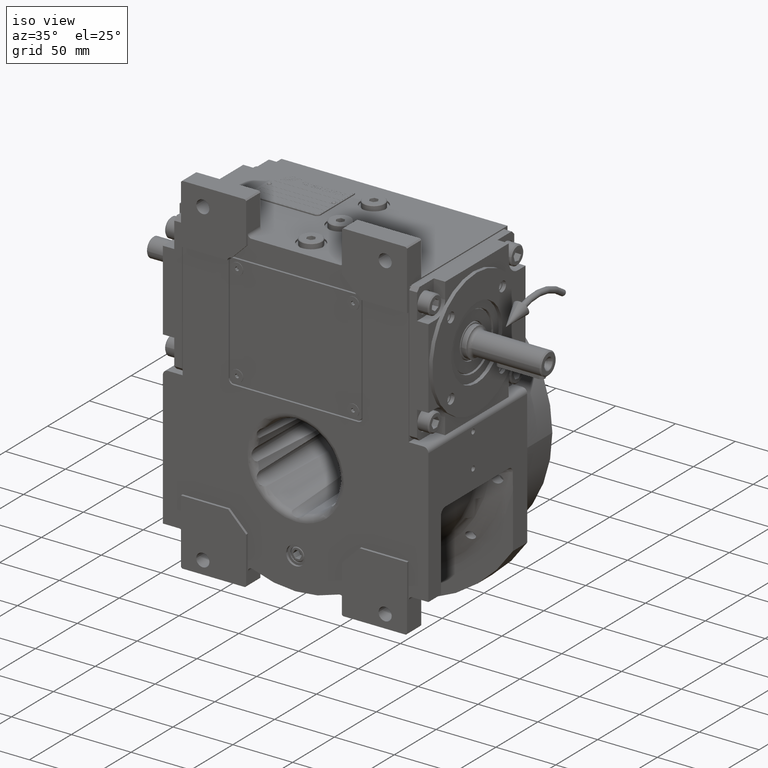
[diagram: clean part render]
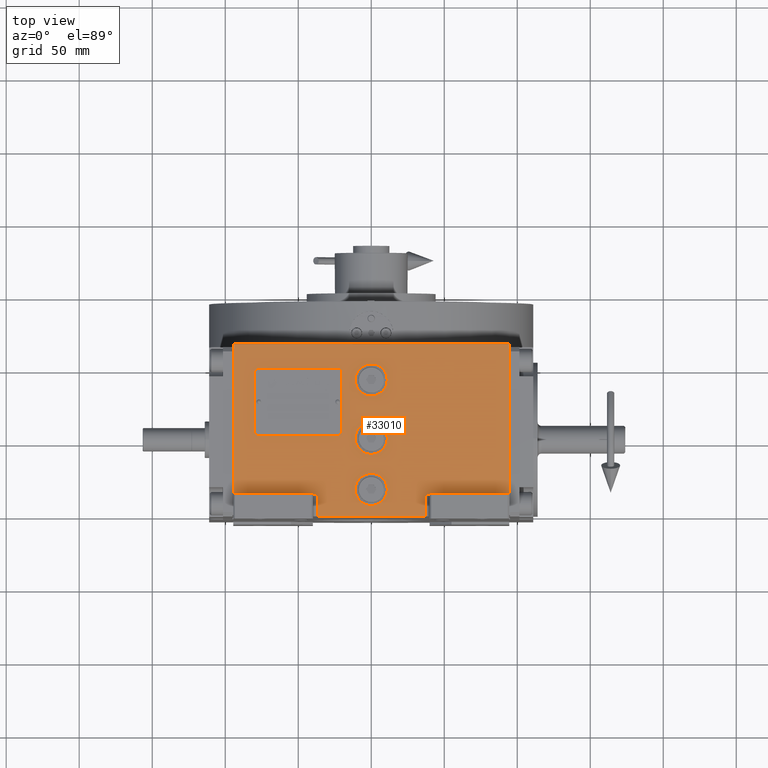
[diagram: tour spotlight — one face highlighted and labeled with its STEP entity id]
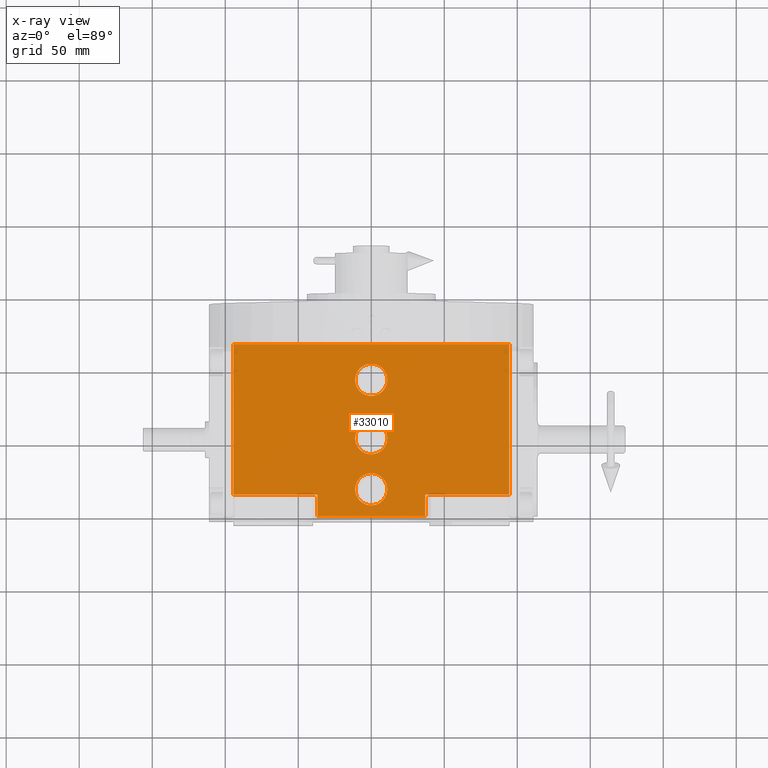
[diagram: x-ray of the same camera — body ghosted, this tour face saturated]
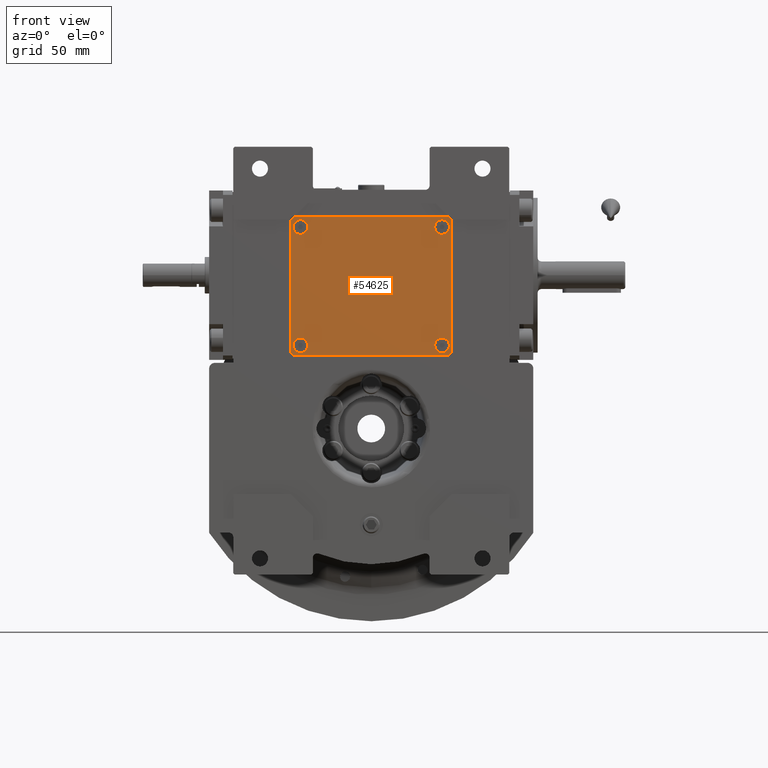
[diagram: tour spotlight — one face highlighted and labeled with its STEP entity id]
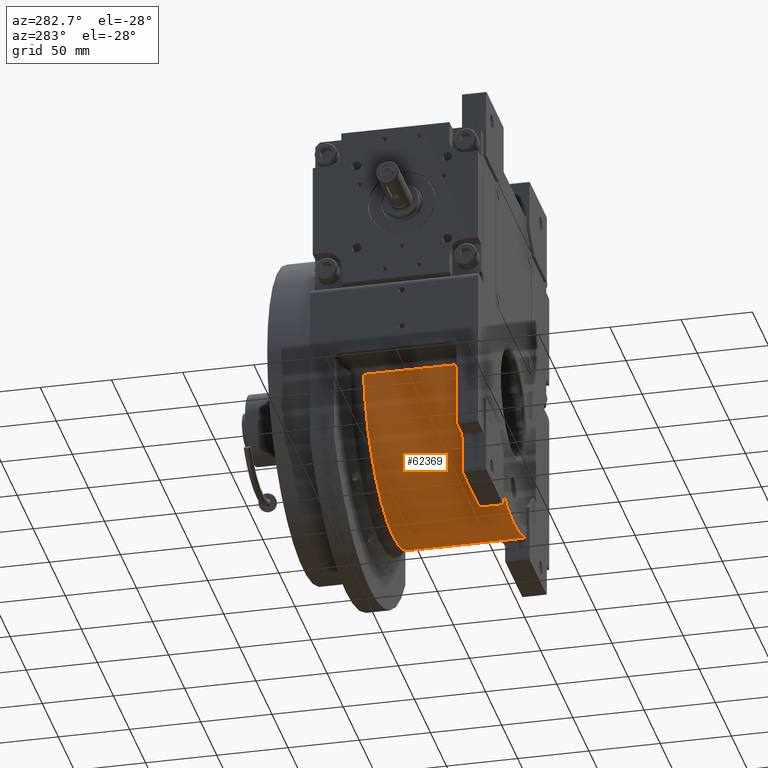
[diagram: tour spotlight — one face highlighted and labeled with its STEP entity id]
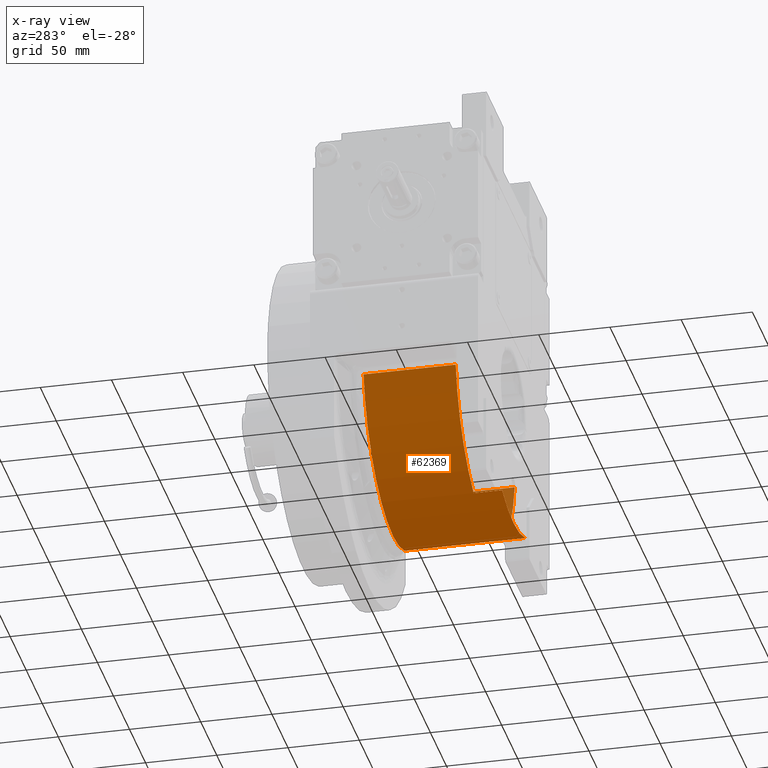
[diagram: x-ray of the same camera — body ghosted, this tour face saturated]
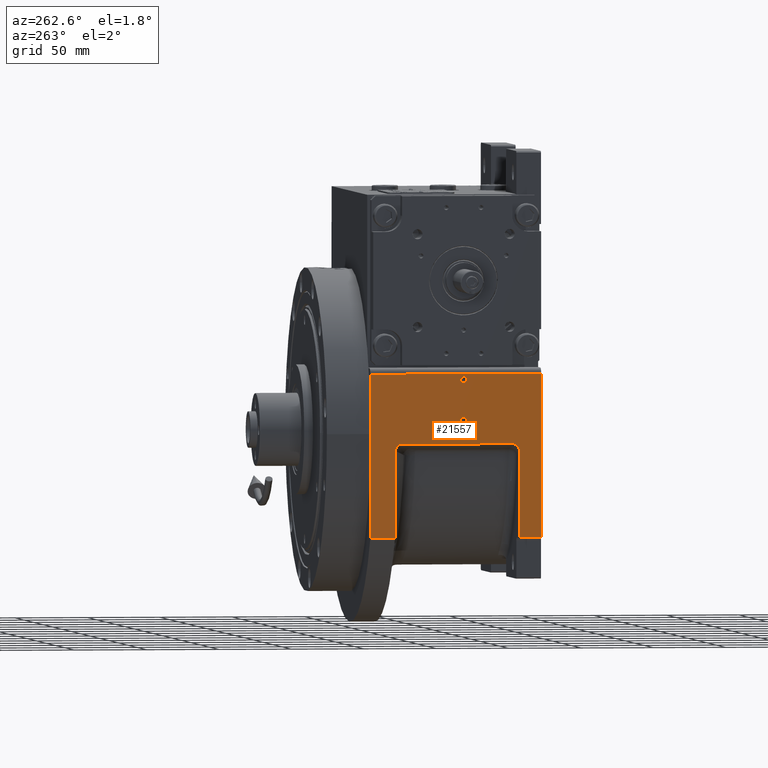
[diagram: tour spotlight — one face highlighted and labeled with its STEP entity id]
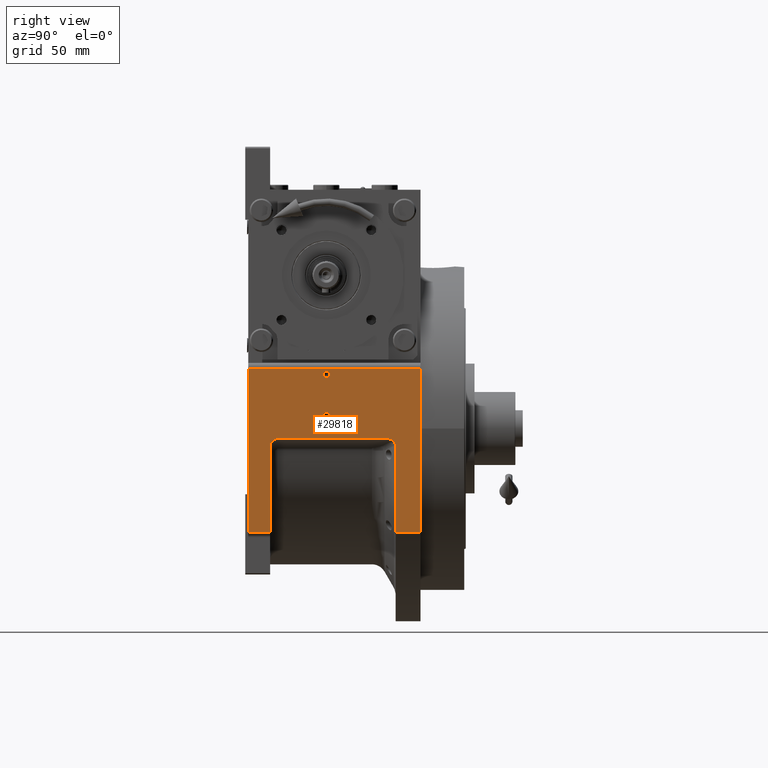
[diagram: tour spotlight — one face highlighted and labeled with its STEP entity id]
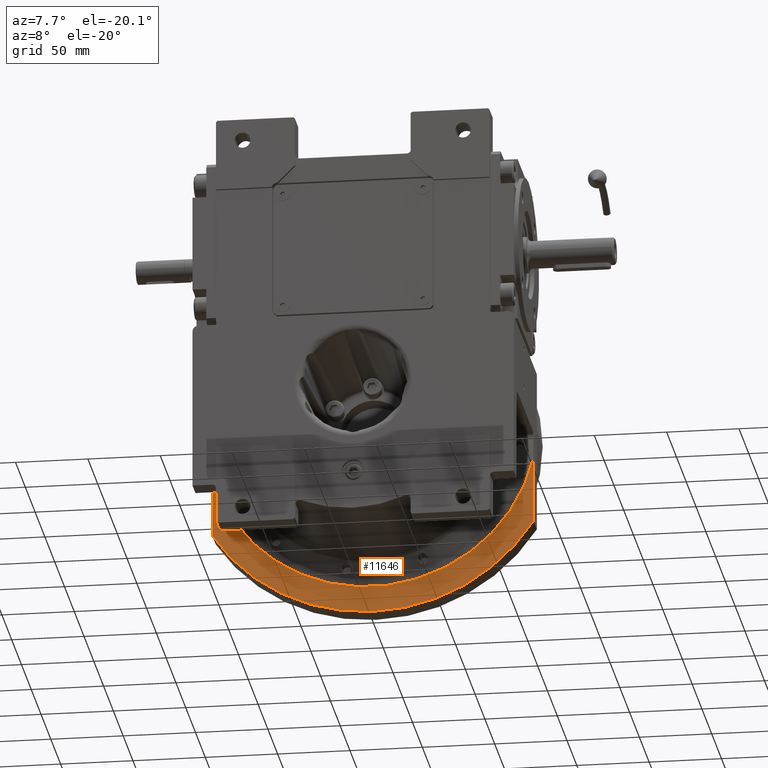
[diagram: tour spotlight — one face highlighted and labeled with its STEP entity id]
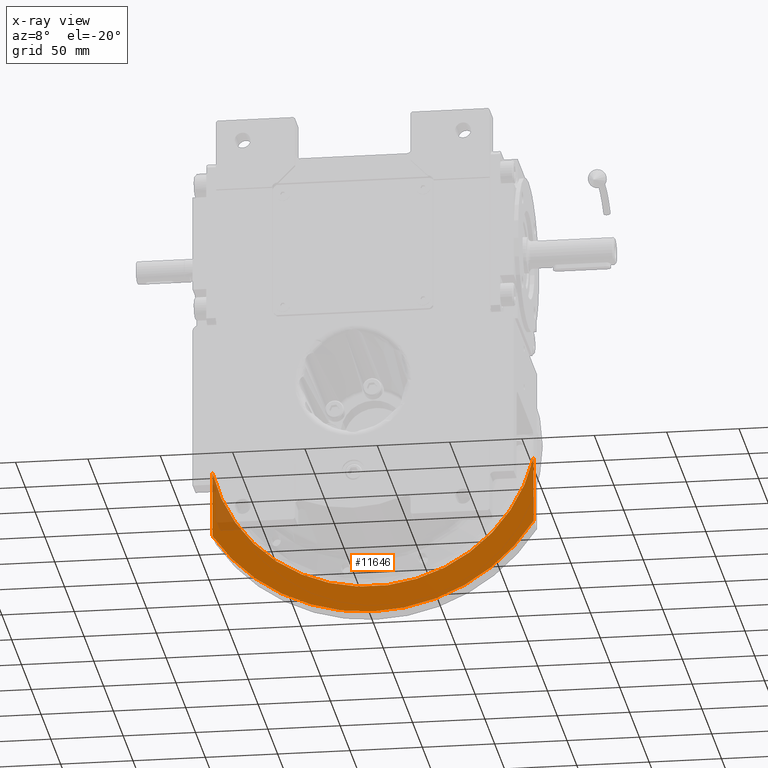
[diagram: x-ray of the same camera — body ghosted, this tour face saturated]
A machine part: a face-by-face anatomy tour. The part has 2052 B-rep faces; the first image is the clean iso view, then the 6 largest visible faces are spotlighted one at a time (largest first), each with its STEP entity span.

Face 1 — top view, entity #33010. An x-ray twin of the same camera follows (body ghosted, this face saturated) — the face is partly hidden behind the body. In plain terms, the highlighted planar face has unit normal (0, 0, 1).
Definition (entity closure, byte-faithful):
#687 = CARTESIAN_POINT ( 'NONE',  ( -11.00000000000000000, -35.00000000000000000, 163.5000000000000000 ) ) ;
#924 = DIRECTION ( 'NONE',  ( 1.000000000000000000, 0.000000000000000000, 0.000000000000000000 ) ) ;
#1332 = CARTESIAN_POINT ( 'NONE',  ( -94.50000000000000000, -53.50000000000000000, 163.5000000000000000 ) ) ;
#1872 = ORIENTED_EDGE ( 'NONE', *, *, #7140, .T. ) ;
#2413 = EDGE_CURVE ( 'NONE', #27797, #52771, #24660, .T. ) ;
#4304 = EDGE_CURVE ( 'NONE', #52771, #27797, #43318, .T. ) ;
#5310 = FACE_BOUND ( 'NONE', #24180, .T. ) ;
#6108 = CARTESIAN_POINT ( 'NONE',  ( -11.00000000000000000, 40.00000000000000000, 163.5000000000000000 ) ) ;
#7140 = EDGE_CURVE ( 'NONE', #29210, #25025, #50013, .T. ) ;
#9000 = CARTESIAN_POINT ( 'NONE',  ( 94.50000000000000000, -38.50000000000000000, 163.5000000000000000 ) ) ;
#9218 = DIRECTION ( 'NONE',  ( 0.000000000000000000, 0.000000000000000000, 1.000000000000000000 ) ) ;
#10930 = CARTESIAN_POINT ( 'NONE',  ( -94.50000000000000000, 64.50000000000000000, 163.5000000000000000 ) ) ;
#11757 = DIRECTION ( 'NONE',  ( 1.000000000000000000, 0.000000000000000000, 0.000000000000000000 ) ) ;
#11782 = CARTESIAN_POINT ( 'NONE',  ( 0.000000000000000000, -35.00000000000000000, 163.5000000000000000 ) ) ;
#12424 = DIRECTION ( 'NONE',  ( 1.000000000000000000, 0.000000000000000000, 0.000000000000000000 ) ) ;
#12435 = AXIS2_PLACEMENT_3D ( 'NONE', #31061, #9218, #48222 ) ;
#12671 = DIRECTION ( 'NONE',  ( 0.000000000000000000, 1.000000000000000000, 0.000000000000000000 ) ) ;
#14507 = CIRCLE ( 'NONE', #64778, 11.00000000000000000 ) ;
#14897 = AXIS2_PLACEMENT_3D ( 'NONE', #50073, #45419, #11757 ) ;
#15785 = LINE ( 'NONE', #16478, #58253 ) ;
#15797 = VERTEX_POINT ( 'NONE', #70638 ) ;
#16009 = FACE_BOUND ( 'NONE', #52392, .T. ) ;
#16082 = ORIENTED_EDGE ( 'NONE', *, *, #66357, .T. ) ;
#16478 = CARTESIAN_POINT ( 'NONE',  ( -94.50000000000000000, -38.50000000000000000, 163.5000000000000000 ) ) ;
#16725 = FACE_BOUND ( 'NONE', #32949, .T. ) ;
#17936 = ORIENTED_EDGE ( 'NONE', *, *, #33979, .F. ) ;
#19115 = LINE ( 'NONE', #46314, #46481 ) ;
#19330 = VECTOR ( 'NONE', #51338, 1000.000000000000000 ) ;
#19763 = CARTESIAN_POINT ( 'NONE',  ( 36.99999999999934630, -38.50000000000000000, 163.5000000000000000 ) ) ;
#19879 = CARTESIAN_POINT ( 'NONE',  ( 94.50000000000000000, 64.50000000000000000, 163.5000000000000000 ) ) ;
#20004 = DIRECTION ( 'NONE',  ( 0.000000000000000000, 0.000000000000000000, 1.000000000000000000 ) ) ;
#20233 = ORIENTED_EDGE ( 'NONE', *, *, #2413, .F. ) ;
#23552 = VERTEX_POINT ( 'NONE', #19879 ) ;
#23648 = DIRECTION ( 'NONE',  ( 1.000000000000000000, 0.000000000000000000, 0.000000000000000000 ) ) ;
#24180 = EDGE_LOOP ( 'NONE', ( #26785, #24792 ) ) ;
#24548 = EDGE_CURVE ( 'NONE', #36415, #63006, #24704, .T. ) ;
#24660 = CIRCLE ( 'NONE', #69209, 11.00000000000000000 ) ;
#24704 = LINE ( 'NONE', #40446, #45188 ) ;
#24792 = ORIENTED_EDGE ( 'NONE', *, *, #57910, .F. ) ;
#25025 = VERTEX_POINT ( 'NONE', #45996 ) ;
#25040 = CIRCLE ( 'NONE', #50166, 11.00000000000000000 ) ;
#25868 = AXIS2_PLACEMENT_3D ( 'NONE', #52933, #20004, #36818 ) ;
#26437 = ORIENTED_EDGE ( 'NONE', *, *, #70573, .F. ) ;
#26785 = ORIENTED_EDGE ( 'NONE', *, *, #39756, .F. ) ;
#26803 = VECTOR ( 'NONE', #36786, 1000.000000000000000 ) ;
#27225 = DIRECTION ( 'NONE',  ( 0.000000000000000000, 0.000000000000000000, 1.000000000000000000 ) ) ;
#27797 = VERTEX_POINT ( 'NONE', #51840 ) ;
#29210 = VERTEX_POINT ( 'NONE', #36371 ) ;
#30406 = DIRECTION ( 'NONE',  ( 1.000000000000000000, 0.000000000000000000, 0.000000000000000000 ) ) ;
#30716 = EDGE_CURVE ( 'NONE', #36415, #25025, #42894, .T. ) ;
#30799 = ORIENTED_EDGE ( 'NONE', *, *, #70270, .F. ) ;
#30969 = EDGE_CURVE ( 'NONE', #70138, #34708, #47737, .T. ) ;
#31061 = CARTESIAN_POINT ( 'NONE',  ( 0.000000000000000000, 0.000000000000000000, 163.5000000000000000 ) ) ;
#31272 = CARTESIAN_POINT ( 'NONE',  ( -94.50000000000000000, -38.50000000000000000, 163.5000000000000000 ) ) ;
#32949 = EDGE_LOOP ( 'NONE', ( #17936, #26437 ) ) ;
#32950 = DIRECTION ( 'NONE',  ( 0.000000000000000000, 1.000000000000000000, 0.000000000000000000 ) ) ;
#33010 = ADVANCED_FACE ( 'NONE', ( #16009, #16725, #5310, #38556 ), #60038, .T. ) ;
#33566 = DIRECTION ( 'NONE',  ( 0.000000000000000000, 0.000000000000000000, 1.000000000000000000 ) ) ;
#33838 = LINE ( 'NONE', #10930, #45962 ) ;
#33907 = DIRECTION ( 'NONE',  ( 1.000000000000000000, 0.000000000000000000, 0.000000000000000000 ) ) ;
#33979 = EDGE_CURVE ( 'NONE', #69504, #41541, #14507, .T. ) ;
#34708 = VERTEX_POINT ( 'NONE', #42451 ) ;
#36371 = CARTESIAN_POINT ( 'NONE',  ( -36.99999999999929656, -53.50000000000000000, 163.5000000000000000 ) ) ;
#36415 = VERTEX_POINT ( 'NONE', #19763 ) ;
#36651 = DIRECTION ( 'NONE',  ( 1.000000000000000000, 0.000000000000000000, 0.000000000000000000 ) ) ;
#36786 = DIRECTION ( 'NONE',  ( 0.000000000000000000, 1.000000000000000000, 0.000000000000000000 ) ) ;
#36818 = DIRECTION ( 'NONE',  ( -1.000000000000000000, 0.000000000000000000, 0.000000000000000000 ) ) ;
#37519 = CARTESIAN_POINT ( 'NONE',  ( 36.99999999999934630, -38.50000000000000000, 163.5000000000000000 ) ) ;
#37829 = CARTESIAN_POINT ( 'NONE',  ( 94.50000000000000000, -38.50000000000000000, 163.5000000000000000 ) ) ;
#37852 = DIRECTION ( 'NONE',  ( 1.000000000000000000, 0.000000000000000000, 0.000000000000000000 ) ) ;
#38556 = FACE_OUTER_BOUND ( 'NONE', #62480, .T. ) ;
#39472 = ORIENTED_EDGE ( 'NONE', *, *, #30969, .T. ) ;
#39625 = CARTESIAN_POINT ( 'NONE',  ( 11.00000000000000000, -35.00000000000000000, 163.5000000000000000 ) ) ;
#39756 = EDGE_CURVE ( 'NONE', #54690, #58106, #58345, .T. ) ;
#40446 = CARTESIAN_POINT ( 'NONE',  ( 36.99999999999934630, -38.50000000000000000, 163.5000000000000000 ) ) ;
#41541 = VERTEX_POINT ( 'NONE', #687 ) ;
#42451 = CARTESIAN_POINT ( 'NONE',  ( -36.99999999999929656, -38.50000000000000000, 163.5000000000000000 ) ) ;
#42894 = LINE ( 'NONE', #37519, #19330 ) ;
#43318 = CIRCLE ( 'NONE', #12435, 11.00000000000000000 ) ;
#43687 = DIRECTION ( 'NONE',  ( -1.000000000000000000, 0.000000000000000000, 0.000000000000000000 ) ) ;
#44645 = CARTESIAN_POINT ( 'NONE',  ( -36.99999999999929656, -53.50000000000000000, 163.5000000000000000 ) ) ;
#44922 = VECTOR ( 'NONE', #33907, 1000.000000000000000 ) ;
#45188 = VECTOR ( 'NONE', #23648, 1000.000000000000000 ) ;
#45402 = ORIENTED_EDGE ( 'NONE', *, *, #63652, .F. ) ;
#45419 = DIRECTION ( 'NONE',  ( 0.000000000000000000, 0.000000000000000000, 1.000000000000000000 ) ) ;
#45962 = VECTOR ( 'NONE', #924, 1000.000000000000000 ) ;
#45996 = CARTESIAN_POINT ( 'NONE',  ( 36.99999999999934630, -53.50000000000000000, 163.5000000000000000 ) ) ;
#46314 = CARTESIAN_POINT ( 'NONE',  ( -36.99999999999929656, -53.50000000000000000, 163.5000000000000000 ) ) ;
#46481 = VECTOR ( 'NONE', #12671, 1000.000000000000000 ) ;
#47737 = LINE ( 'NONE', #31272, #66219 ) ;
#48222 = DIRECTION ( 'NONE',  ( -1.000000000000000000, 0.000000000000000000, 0.000000000000000000 ) ) ;
#48349 = CARTESIAN_POINT ( 'NONE',  ( 0.000000000000000000, 40.00000000000000000, 163.5000000000000000 ) ) ;
#49876 = CIRCLE ( 'NONE', #25868, 11.00000000000000000 ) ;
#50013 = LINE ( 'NONE', #44645, #44922 ) ;
#50038 = CARTESIAN_POINT ( 'NONE',  ( 0.000000000000000000, 0.000000000000000000, 163.5000000000000000 ) ) ;
#50073 = CARTESIAN_POINT ( 'NONE',  ( 0.000000000000000000, 40.00000000000000000, 163.5000000000000000 ) ) ;
#50166 = AXIS2_PLACEMENT_3D ( 'NONE', #48349, #27225, #43687 ) ;
#51338 = DIRECTION ( 'NONE',  ( 0.000000000000000000, -1.000000000000000000, 0.000000000000000000 ) ) ;
#51840 = CARTESIAN_POINT ( 'NONE',  ( 11.00000000000000000, -1.179289943096200059E-15, 163.5000000000000000 ) ) ;
#52392 = EDGE_LOOP ( 'NONE', ( #20233, #61582 ) ) ;
#52771 = VERTEX_POINT ( 'NONE', #66201 ) ;
#52933 = CARTESIAN_POINT ( 'NONE',  ( 0.000000000000000000, -35.00000000000000000, 163.5000000000000000 ) ) ;
#54690 = VERTEX_POINT ( 'NONE', #65049 ) ;
#55455 = DIRECTION ( 'NONE',  ( 0.000000000000000000, 0.000000000000000000, 1.000000000000000000 ) ) ;
#57910 = EDGE_CURVE ( 'NONE', #58106, #54690, #25040, .T. ) ;
#58106 = VERTEX_POINT ( 'NONE', #6108 ) ;
#58253 = VECTOR ( 'NONE', #32950, 1000.000000000000000 ) ;
#58345 = CIRCLE ( 'NONE', #14897, 11.00000000000000000 ) ;
#59268 = EDGE_CURVE ( 'NONE', #70138, #15797, #15785, .T. ) ;
#60038 = PLANE ( 'NONE',  #69283 ) ;
#61582 = ORIENTED_EDGE ( 'NONE', *, *, #4304, .F. ) ;
#62480 = EDGE_LOOP ( 'NONE', ( #1872, #64838, #64118, #16082, #45402, #65022, #39472, #30799 ) ) ;
#63006 = VERTEX_POINT ( 'NONE', #9000 ) ;
#63652 = EDGE_CURVE ( 'NONE', #15797, #23552, #33838, .T. ) ;
#64118 = ORIENTED_EDGE ( 'NONE', *, *, #24548, .T. ) ;
#64678 = LINE ( 'NONE', #37829, #26803 ) ;
#64778 = AXIS2_PLACEMENT_3D ( 'NONE', #11782, #55455, #30406 ) ;
#64838 = ORIENTED_EDGE ( 'NONE', *, *, #30716, .F. ) ;
#65022 = ORIENTED_EDGE ( 'NONE', *, *, #59268, .F. ) ;
#65049 = CARTESIAN_POINT ( 'NONE',  ( 11.00000000000000000, 40.00000000000000000, 163.5000000000000000 ) ) ;
#66108 = DIRECTION ( 'NONE',  ( 0.000000000000000000, 0.000000000000000000, 1.000000000000000000 ) ) ;
#66201 = CARTESIAN_POINT ( 'NONE',  ( -11.00000000000000000, 0.000000000000000000, 163.5000000000000000 ) ) ;
#66219 = VECTOR ( 'NONE', #36651, 1000.000000000000000 ) ;
#66357 = EDGE_CURVE ( 'NONE', #63006, #23552, #64678, .T. ) ;
#66737 = CARTESIAN_POINT ( 'NONE',  ( -94.50000000000000000, -38.50000000000000000, 163.5000000000000000 ) ) ;
#69209 = AXIS2_PLACEMENT_3D ( 'NONE', #50038, #33566, #12424 ) ;
#69283 = AXIS2_PLACEMENT_3D ( 'NONE', #1332, #66108, #37852 ) ;
#69504 = VERTEX_POINT ( 'NONE', #39625 ) ;
#70138 = VERTEX_POINT ( 'NONE', #66737 ) ;
#70270 = EDGE_CURVE ( 'NONE', #29210, #34708, #19115, .T. ) ;
#70573 = EDGE_CURVE ( 'NONE', #41541, #69504, #49876, .T. ) ;
#70638 = CARTESIAN_POINT ( 'NONE',  ( -94.50000000000000000, 64.50000000000000000, 163.5000000000000000 ) ) ;

Face 2 — front view, entity #54625. In plain terms, the highlighted planar face has unit normal (0, -1, -0).
Definition (entity closure, byte-faithful):
#332 = LINE ( 'NONE', #54362, #15098 ) ;
#339 = VERTEX_POINT ( 'NONE', #49051 ) ;
#357 = DIRECTION ( 'NONE',  ( 1.000000000000000000, 1.541976423090496028E-15, 0.000000000000000000 ) ) ;
#917 = CARTESIAN_POINT ( 'NONE',  ( 48.50000000000026290, 40.49999999999999289, 3.000000000000002665 ) ) ;
#1556 = VECTOR ( 'NONE', #26039, 1000.000000000000000 ) ;
#2514 = CARTESIAN_POINT ( 'NONE',  ( -52.99999999999973710, 47.50000000000000000, 3.000000000000259348 ) ) ;
#3053 = CARTESIAN_POINT ( 'NONE',  ( -48.49999999999973710, -40.49999999999973710, 3.000000000000002665 ) ) ;
#3154 = EDGE_CURVE ( 'NONE', #61057, #15587, #47754, .T. ) ;
#3466 = LINE ( 'NONE', #18486, #56345 ) ;
#3610 = CARTESIAN_POINT ( 'NONE',  ( -48.49999999999973710, -40.49999999999973710, 3.000000000000002665 ) ) ;
#3996 = DIRECTION ( 'NONE',  ( -9.367723249499515189E-31, -1.000000000000000000, 0.000000000000000000 ) ) ;
#4229 = CARTESIAN_POINT ( 'NONE',  ( 53.00000000000026290, 47.50000000000000000, 3.000000000000002665 ) ) ;
#4377 = ORIENTED_EDGE ( 'NONE', *, *, #41504, .T. ) ;
#5380 = CARTESIAN_POINT ( 'NONE',  ( 48.50000000000026290, -40.50000000000000000, 2.999999999999738876 ) ) ;
#5513 = EDGE_CURVE ( 'NONE', #56527, #6885, #36806, .T. ) ;
#5523 = LINE ( 'NONE', #55234, #11041 ) ;
#5998 = FACE_BOUND ( 'NONE', #24787, .T. ) ;
#6053 = CIRCLE ( 'NONE', #64329, 4.499999999999997335 ) ;
#6637 = EDGE_CURVE ( 'NONE', #26184, #55669, #6053, .T. ) ;
#6885 = VERTEX_POINT ( 'NONE', #15314 ) ;
#7158 = EDGE_CURVE ( 'NONE', #13134, #61057, #3466, .T. ) ;
#7199 = VERTEX_POINT ( 'NONE', #52140 ) ;
#7700 = ORIENTED_EDGE ( 'NONE', *, *, #42360, .F. ) ;
#7751 = LINE ( 'NONE', #67168, #54263 ) ;
#8113 = DIRECTION ( 'NONE',  ( 0.7071067811865474617, -0.7071067811865474617, 3.697785493223490101E-32 ) ) ;
#8135 = ORIENTED_EDGE ( 'NONE', *, *, #63665, .F. ) ;
#8145 = EDGE_LOOP ( 'NONE', ( #27451, #26524 ) ) ;
#8662 = CIRCLE ( 'NONE', #64697, 4.499999999999997335 ) ;
#9547 = VERTEX_POINT ( 'NONE', #65103 ) ;
#10005 = DIRECTION ( 'NONE',  ( 9.255241265799875595E-31, 0.000000000000000000, 1.000000000000000000 ) ) ;
#10636 = PLANE ( 'NONE',  #61775 ) ;
#10772 = EDGE_CURVE ( 'NONE', #50002, #339, #50830, .T. ) ;
#10848 = ORIENTED_EDGE ( 'NONE', *, *, #63015, .T. ) ;
#11041 = VECTOR ( 'NONE', #16232, 1000.000000000000114 ) ;
#11346 = CARTESIAN_POINT ( 'NONE',  ( 0.000000000000000000, 0.000000000000000000, 3.000000000000002665 ) ) ;
#13134 = VERTEX_POINT ( 'NONE', #24044 ) ;
#13432 = ORIENTED_EDGE ( 'NONE', *, *, #43000, .T. ) ;
#15033 = AXIS2_PLACEMENT_3D ( 'NONE', #59673, #54293, #15660 ) ;
#15098 = VECTOR ( 'NONE', #43979, 1000.000000000000114 ) ;
#15139 = ORIENTED_EDGE ( 'NONE', *, *, #7158, .T. ) ;
#15314 = CARTESIAN_POINT ( 'NONE',  ( 44.00000000000026290, 40.49999999999999289, 3.000000000000002665 ) ) ;
#15587 = VERTEX_POINT ( 'NONE', #61049 ) ;
#15660 = DIRECTION ( 'NONE',  ( 1.000000000000000000, 1.541976423090496028E-15, 0.000000000000000000 ) ) ;
#15732 = DIRECTION ( 'NONE',  ( 1.000000000000000000, 1.541976423090496028E-15, 0.000000000000000000 ) ) ;
#16232 = DIRECTION ( 'NONE',  ( -0.7071067811865474617, -0.7071067811865474617, -9.367723249499506431E-31 ) ) ;
#16431 = DIRECTION ( 'NONE',  ( 9.255241265799875595E-31, 0.000000000000000000, 1.000000000000000000 ) ) ;
#16760 = CARTESIAN_POINT ( 'NONE',  ( -48.49999999999973710, 40.49999999999999289, 3.000000000000259348 ) ) ;
#17509 = DIRECTION ( 'NONE',  ( -1.000000000000000000, -1.541976423090496028E-15, 0.000000000000000000 ) ) ;
#17683 = CARTESIAN_POINT ( 'NONE',  ( -53.00000000000000000, -47.49999999999973710, 3.000000000000266454 ) ) ;
#17895 = ORIENTED_EDGE ( 'NONE', *, *, #3154, .T. ) ;
#18157 = ORIENTED_EDGE ( 'NONE', *, *, #20498, .F. ) ;
#18486 = CARTESIAN_POINT ( 'NONE',  ( -55.00000000000000000, -45.49999999999973710, 3.000000000000266454 ) ) ;
#19664 = VECTOR ( 'NONE', #3996, 1000.000000000000000 ) ;
#20199 = CARTESIAN_POINT ( 'NONE',  ( 53.00000000000026290, 47.50000000000000000, 3.000000000000002665 ) ) ;
#20498 = EDGE_CURVE ( 'NONE', #39591, #31264, #8662, .T. ) ;
#20872 = CARTESIAN_POINT ( 'NONE',  ( 53.00000000000026290, -40.50000000000000000, 2.999999999999738876 ) ) ;
#21300 = EDGE_CURVE ( 'NONE', #59710, #7199, #5523, .T. ) ;
#21677 = DIRECTION ( 'NONE',  ( 9.255241265799875595E-31, 0.000000000000000000, 1.000000000000000000 ) ) ;
#22386 = DIRECTION ( 'NONE',  ( -1.000000000000000000, -1.541976423090496028E-15, 0.000000000000000000 ) ) ;
#22804 = FACE_BOUND ( 'NONE', #8145, .T. ) ;
#23046 = CARTESIAN_POINT ( 'NONE',  ( 55.00000000000000000, -45.50000000000000000, 3.000000000000002665 ) ) ;
#23561 = DIRECTION ( 'NONE',  ( 9.255241265799875595E-31, 0.000000000000000000, 1.000000000000000000 ) ) ;
#24044 = CARTESIAN_POINT ( 'NONE',  ( -55.00000000000000000, -45.49999999999973710, 3.000000000000266454 ) ) ;
#24499 = DIRECTION ( 'NONE',  ( -1.000000000000000000, -1.541976423090496028E-15, 0.000000000000000000 ) ) ;
#24787 = EDGE_LOOP ( 'NONE', ( #49145, #64849 ) ) ;
#25692 = CARTESIAN_POINT ( 'NONE',  ( -43.99999999999973710, -40.49999999999973710, 2.999999999999995559 ) ) ;
#26039 = DIRECTION ( 'NONE',  ( -1.000000000000000000, -9.367723249499515189E-31, -9.255241265799875595E-31 ) ) ;
#26184 = VERTEX_POINT ( 'NONE', #64764 ) ;
#26524 = ORIENTED_EDGE ( 'NONE', *, *, #6637, .F. ) ;
#26595 = AXIS2_PLACEMENT_3D ( 'NONE', #31666, #48480, #42761 ) ;
#27451 = ORIENTED_EDGE ( 'NONE', *, *, #53009, .F. ) ;
#27475 = FACE_OUTER_BOUND ( 'NONE', #33948, .T. ) ;
#28196 = FACE_BOUND ( 'NONE', #40517, .T. ) ;
#29235 = DIRECTION ( 'NONE',  ( 0.7071067811865474617, 0.7071067811865474617, 9.367723249499506431E-31 ) ) ;
#31264 = VERTEX_POINT ( 'NONE', #44824 ) ;
#31666 = CARTESIAN_POINT ( 'NONE',  ( -48.49999999999973710, 40.49999999999999289, 3.000000000000259348 ) ) ;
#31986 = CARTESIAN_POINT ( 'NONE',  ( -53.00000000000000000, -47.49999999999973710, 3.000000000000266454 ) ) ;
#32127 = DIRECTION ( 'NONE',  ( -9.255241265799875595E-31, -1.734010775707216474E-60, 1.000000000000000000 ) ) ;
#33388 = AXIS2_PLACEMENT_3D ( 'NONE', #3053, #56352, #24499 ) ;
#33592 = VECTOR ( 'NONE', #60258, 1000.000000000000000 ) ;
#33624 = CARTESIAN_POINT ( 'NONE',  ( 48.50000000000026290, -40.50000000000000000, 2.999999999999738876 ) ) ;
#33948 = EDGE_LOOP ( 'NONE', ( #43406, #4377, #13432, #51741, #10848, #15139, #17895, #44904 ) ) ;
#34140 = DIRECTION ( 'NONE',  ( 9.367723249499515189E-31, 1.000000000000000000, 0.000000000000000000 ) ) ;
#34365 = AXIS2_PLACEMENT_3D ( 'NONE', #917, #21677, #22386 ) ;
#36806 = CIRCLE ( 'NONE', #15033, 4.499999999999997335 ) ;
#37794 = CIRCLE ( 'NONE', #34365, 4.499999999999997335 ) ;
#37997 = CIRCLE ( 'NONE', #33388, 4.499999999999997335 ) ;
#39591 = VERTEX_POINT ( 'NONE', #63797 ) ;
#40517 = EDGE_LOOP ( 'NONE', ( #7700, #18157 ) ) ;
#41504 = EDGE_CURVE ( 'NONE', #9547, #63861, #332, .T. ) ;
#42360 = EDGE_CURVE ( 'NONE', #31264, #39591, #60883, .T. ) ;
#42715 = CARTESIAN_POINT ( 'NONE',  ( 53.00000000000026290, 40.49999999999999289, 3.000000000000002665 ) ) ;
#42761 = DIRECTION ( 'NONE',  ( 1.000000000000000000, 1.541976423090496028E-15, 0.000000000000000000 ) ) ;
#43000 = EDGE_CURVE ( 'NONE', #63861, #59710, #58270, .T. ) ;
#43406 = ORIENTED_EDGE ( 'NONE', *, *, #50550, .T. ) ;
#43979 = DIRECTION ( 'NONE',  ( -0.7071067811865474617, 0.7071067811865474617, -3.697785493223490101E-32 ) ) ;
#44824 = CARTESIAN_POINT ( 'NONE',  ( -43.99999999999973710, 40.49999999999999289, 3.000000000000009770 ) ) ;
#44904 = ORIENTED_EDGE ( 'NONE', *, *, #46275, .T. ) ;
#45102 = VERTEX_POINT ( 'NONE', #67508 ) ;
#45979 = ORIENTED_EDGE ( 'NONE', *, *, #10772, .F. ) ;
#46275 = EDGE_CURVE ( 'NONE', #15587, #45102, #7751, .T. ) ;
#47754 = LINE ( 'NONE', #31986, #33592 ) ;
#48480 = DIRECTION ( 'NONE',  ( 9.255241265799875595E-31, 0.000000000000000000, 1.000000000000000000 ) ) ;
#49051 = CARTESIAN_POINT ( 'NONE',  ( -52.99999999999973710, -40.49999999999973710, 3.000000000000002665 ) ) ;
#49145 = ORIENTED_EDGE ( 'NONE', *, *, #5513, .F. ) ;
#49203 = LINE ( 'NONE', #23046, #65920 ) ;
#50002 = VERTEX_POINT ( 'NONE', #25692 ) ;
#50550 = EDGE_CURVE ( 'NONE', #45102, #9547, #49203, .T. ) ;
#50830 = CIRCLE ( 'NONE', #62324, 4.499999999999997335 ) ;
#51741 = ORIENTED_EDGE ( 'NONE', *, *, #21300, .T. ) ;
#51977 = EDGE_LOOP ( 'NONE', ( #45979, #8135 ) ) ;
#52140 = CARTESIAN_POINT ( 'NONE',  ( -54.99999999999973710, 45.50000000000000000, 3.000000000000266454 ) ) ;
#53009 = EDGE_CURVE ( 'NONE', #55669, #26184, #53592, .T. ) ;
#53592 = CIRCLE ( 'NONE', #61618, 4.499999999999997335 ) ;
#53956 = DIRECTION ( 'NONE',  ( 1.000000000000000000, 9.367723249499515189E-31, 9.255241265799875595E-31 ) ) ;
#54263 = VECTOR ( 'NONE', #29235, 1000.000000000000114 ) ;
#54293 = DIRECTION ( 'NONE',  ( 9.255241265799875595E-31, 0.000000000000000000, 1.000000000000000000 ) ) ;
#54362 = CARTESIAN_POINT ( 'NONE',  ( 55.00000000000026290, 45.50000000000000000, 3.000000000000002665 ) ) ;
#54625 = ADVANCED_FACE ( 'NONE', ( #27475, #5998, #28196, #22804, #64704 ), #10636, .T. ) ;
#55234 = CARTESIAN_POINT ( 'NONE',  ( -52.99999999999973710, 47.50000000000000000, 3.000000000000259348 ) ) ;
#55669 = VERTEX_POINT ( 'NONE', #20872 ) ;
#56345 = VECTOR ( 'NONE', #8113, 1000.000000000000114 ) ;
#56352 = DIRECTION ( 'NONE',  ( 9.255241265799875595E-31, 0.000000000000000000, 1.000000000000000000 ) ) ;
#56527 = VERTEX_POINT ( 'NONE', #42715 ) ;
#57688 = CARTESIAN_POINT ( 'NONE',  ( -54.99999999999973710, 45.50000000000000000, 3.000000000000266454 ) ) ;
#58270 = LINE ( 'NONE', #4229, #1556 ) ;
#59673 = CARTESIAN_POINT ( 'NONE',  ( 48.50000000000026290, 40.49999999999999289, 3.000000000000002665 ) ) ;
#59710 = VERTEX_POINT ( 'NONE', #2514 ) ;
#60258 = DIRECTION ( 'NONE',  ( 1.000000000000000000, 9.367723249499515189E-31, 9.255241265799875595E-31 ) ) ;
#60787 = DIRECTION ( 'NONE',  ( -1.000000000000000000, -1.541976423090496028E-15, 0.000000000000000000 ) ) ;
#60883 = CIRCLE ( 'NONE', #26595, 4.499999999999997335 ) ;
#61049 = CARTESIAN_POINT ( 'NONE',  ( 53.00000000000000000, -47.50000000000000000, 3.000000000000002665 ) ) ;
#61057 = VERTEX_POINT ( 'NONE', #17683 ) ;
#61618 = AXIS2_PLACEMENT_3D ( 'NONE', #5380, #16431, #357 ) ;
#61775 = AXIS2_PLACEMENT_3D ( 'NONE', #11346, #32127, #53956 ) ;
#62262 = EDGE_CURVE ( 'NONE', #6885, #56527, #37794, .T. ) ;
#62324 = AXIS2_PLACEMENT_3D ( 'NONE', #3610, #10005, #15732 ) ;
#63015 = EDGE_CURVE ( 'NONE', #7199, #13134, #64108, .T. ) ;
#63665 = EDGE_CURVE ( 'NONE', #339, #50002, #37997, .T. ) ;
#63797 = CARTESIAN_POINT ( 'NONE',  ( -52.99999999999973710, 40.49999999999999289, 3.000000000000259348 ) ) ;
#63861 = VERTEX_POINT ( 'NONE', #20199 ) ;
#64108 = LINE ( 'NONE', #57688, #19664 ) ;
#64329 = AXIS2_PLACEMENT_3D ( 'NONE', #33624, #66550, #17509 ) ;
#64697 = AXIS2_PLACEMENT_3D ( 'NONE', #16760, #23561, #60787 ) ;
#64704 = FACE_BOUND ( 'NONE', #51977, .T. ) ;
#64764 = CARTESIAN_POINT ( 'NONE',  ( 44.00000000000026290, -40.50000000000000000, 2.999999999999995559 ) ) ;
#64849 = ORIENTED_EDGE ( 'NONE', *, *, #62262, .F. ) ;
#65103 = CARTESIAN_POINT ( 'NONE',  ( 55.00000000000026290, 45.50000000000000000, 3.000000000000002665 ) ) ;
#65920 = VECTOR ( 'NONE', #34140, 1000.000000000000000 ) ;
#66550 = DIRECTION ( 'NONE',  ( 9.255241265799875595E-31, 0.000000000000000000, 1.000000000000000000 ) ) ;
#67168 = CARTESIAN_POINT ( 'NONE',  ( 53.00000000000000000, -47.50000000000000000, 3.000000000000002665 ) ) ;
#67508 = CARTESIAN_POINT ( 'NONE',  ( 55.00000000000000000, -45.50000000000000000, 3.000000000000002665 ) ) ;

Face 3 — auxiliary view, entity #62369. An x-ray twin of the same camera follows (body ghosted, this face saturated) — the face is partly hidden behind the body. In plain terms, the highlighted cylindrical surface (partial cylindrical patch) has radius 93 mm, axis along (0, 1, 0).
Definition (entity closure, byte-faithful):
#1300 = DIRECTION ( 'NONE',  ( 0.000000000000000000, 1.000000000000000000, 0.000000000000000000 ) ) ;
#2309 = CIRCLE ( 'NONE', #41146, 92.99999999999995737 ) ;
#2735 = VERTEX_POINT ( 'NONE', #61394 ) ;
#3270 = LINE ( 'NONE', #68041, #46321 ) ;
#4316 = CARTESIAN_POINT ( 'NONE',  ( -35.84375000000000000, -53.50000000000000000, -85.81506619433150718 ) ) ;
#5822 = DIRECTION ( 'NONE',  ( -0.3854166666666672403, 0.000000000000000000, -0.9227426472508764022 ) ) ;
#6870 = CARTESIAN_POINT ( 'NONE',  ( 1.421085471520200056E-14, -53.50000000000000000, -4.263256414560599853E-14 ) ) ;
#7894 = EDGE_CURVE ( 'NONE', #8631, #28680, #27704, .T. ) ;
#8385 = CARTESIAN_POINT ( 'NONE',  ( 35.84375000000000000, -33.50000000000000000, -85.81506619433150718 ) ) ;
#8612 = CARTESIAN_POINT ( 'NONE',  ( -35.84375000000000000, -53.50000000000000000, -85.81506619433150718 ) ) ;
#8631 = VERTEX_POINT ( 'NONE', #35890 ) ;
#9119 = VERTEX_POINT ( 'NONE', #46544 ) ;
#9427 = LINE ( 'NONE', #8385, #30787 ) ;
#10133 = EDGE_CURVE ( 'NONE', #9119, #2735, #49668, .T. ) ;
#10547 = LINE ( 'NONE', #27037, #39951 ) ;
#10596 = EDGE_CURVE ( 'NONE', #27560, #8631, #46553, .T. ) ;
#11173 = ORIENTED_EDGE ( 'NONE', *, *, #10133, .T. ) ;
#12546 = DIRECTION ( 'NONE',  ( 1.776356839400250070E-15, 1.000000000000000000, -7.105427357601000281E-16 ) ) ;
#12872 = CARTESIAN_POINT ( 'NONE',  ( 1.421085471520200056E-14, 31.21878281274215183, 0.000000000000000000 ) ) ;
#13393 = CYLINDRICAL_SURFACE ( 'NONE', #23026, 93.00000000000000000 ) ;
#14199 = AXIS2_PLACEMENT_3D ( 'NONE', #61769, #1300, #50328 ) ;
#16087 = ORIENTED_EDGE ( 'NONE', *, *, #55224, .T. ) ;
#18056 = DIRECTION ( 'NONE',  ( 0.000000000000000000, 0.000000000000000000, 1.000000000000000000 ) ) ;
#20478 = VERTEX_POINT ( 'NONE', #22142 ) ;
#21878 = VERTEX_POINT ( 'NONE', #57192 ) ;
#22142 = CARTESIAN_POINT ( 'NONE',  ( 91.75016228501930016, 31.21878281274259948, -15.19564808333685058 ) ) ;
#22946 = ORIENTED_EDGE ( 'NONE', *, *, #67018, .T. ) ;
#23026 = AXIS2_PLACEMENT_3D ( 'NONE', #24852, #29869, #18056 ) ;
#24852 = CARTESIAN_POINT ( 'NONE',  ( -4.517455316885850268E-28, -53.50000000000000000, 0.000000000000000000 ) ) ;
#25401 = DIRECTION ( 'NONE',  ( -0.3854166666666659080, 0.000000000000000000, -0.9227426472508768462 ) ) ;
#25453 = AXIS2_PLACEMENT_3D ( 'NONE', #58685, #31472, #25401 ) ;
#27037 = CARTESIAN_POINT ( 'NONE',  ( 91.75016228501930016, 31.21878281274199907, -15.19564808333685058 ) ) ;
#27560 = VERTEX_POINT ( 'NONE', #4316 ) ;
#27704 = CIRCLE ( 'NONE', #25453, 93.00000000000001421 ) ;
#27789 = CIRCLE ( 'NONE', #36935, 93.00000000000001421 ) ;
#28001 = CARTESIAN_POINT ( 'NONE',  ( -91.75016228508779648, -33.50000000000000000, -15.19564808292360070 ) ) ;
#28616 = ORIENTED_EDGE ( 'NONE', *, *, #7894, .T. ) ;
#28680 = VERTEX_POINT ( 'NONE', #28001 ) ;
#29759 = DIRECTION ( 'NONE',  ( 0.000000000000000000, 1.000000000000000000, 0.000000000000000000 ) ) ;
#29869 = DIRECTION ( 'NONE',  ( 0.000000000000000000, 1.000000000000000000, 0.000000000000000000 ) ) ;
#30787 = VECTOR ( 'NONE', #42366, 1000.000000000000000 ) ;
#30975 = EDGE_CURVE ( 'NONE', #2735, #70297, #9427, .T. ) ;
#31472 = DIRECTION ( 'NONE',  ( 0.000000000000000000, 1.000000000000000000, 0.000000000000000000 ) ) ;
#35890 = CARTESIAN_POINT ( 'NONE',  ( -35.84375000000000000, -33.50000000000000000, -85.81506619433150718 ) ) ;
#36935 = AXIS2_PLACEMENT_3D ( 'NONE', #12872, #67996, #50478 ) ;
#39890 = FACE_OUTER_BOUND ( 'NONE', #58832, .T. ) ;
#39951 = VECTOR ( 'NONE', #65305, 1000.000000000000000 ) ;
#40355 = ORIENTED_EDGE ( 'NONE', *, *, #10596, .T. ) ;
#40553 = VECTOR ( 'NONE', #12546, 1000.000000000000000 ) ;
#41146 = AXIS2_PLACEMENT_3D ( 'NONE', #6870, #61274, #5822 ) ;
#42366 = DIRECTION ( 'NONE',  ( 0.000000000000000000, -1.000000000000000000, 0.000000000000000000 ) ) ;
#43686 = ORIENTED_EDGE ( 'NONE', *, *, #64684, .F. ) ;
#44818 = ORIENTED_EDGE ( 'NONE', *, *, #30975, .T. ) ;
#46321 = VECTOR ( 'NONE', #29759, 1000.000000000000000 ) ;
#46544 = CARTESIAN_POINT ( 'NONE',  ( 91.75016228514499517, -33.50000000000000000, -15.19564808257825028 ) ) ;
#46553 = LINE ( 'NONE', #8612, #40553 ) ;
#49668 = CIRCLE ( 'NONE', #14199, 93.00000000000001421 ) ;
#50328 = DIRECTION ( 'NONE',  ( 0.9865608847878558629, 0.000000000000000000, -0.1633940653959109757 ) ) ;
#50478 = DIRECTION ( 'NONE',  ( 0.9865608847851539132, -1.678764654171103455E-15, -0.1633940654122239822 ) ) ;
#54283 = EDGE_CURVE ( 'NONE', #27560, #70297, #2309, .T. ) ;
#55224 = EDGE_CURVE ( 'NONE', #20478, #9119, #10547, .T. ) ;
#56744 = ORIENTED_EDGE ( 'NONE', *, *, #54283, .F. ) ;
#57192 = CARTESIAN_POINT ( 'NONE',  ( -91.75030103113060420, 31.21878279875124917, -15.19503959111690072 ) ) ;
#58685 = CARTESIAN_POINT ( 'NONE',  ( -5.684341886080798963E-14, -33.50000000000000000, -4.973799150320699408E-14 ) ) ;
#58832 = EDGE_LOOP ( 'NONE', ( #56744, #40355, #28616, #22946, #43686, #16087, #11173, #44818 ) ) ;
#61274 = DIRECTION ( 'NONE',  ( 0.000000000000000000, -1.000000000000000000, 0.000000000000000000 ) ) ;
#61394 = CARTESIAN_POINT ( 'NONE',  ( 35.84375000000000000, -33.50000000000000000, -85.81506619433150718 ) ) ;
#61769 = CARTESIAN_POINT ( 'NONE',  ( 1.421085471520200056E-14, -33.50000000000000000, 1.421085471520200056E-14 ) ) ;
#62369 = ADVANCED_FACE ( 'NONE', ( #39890 ), #13393, .T. ) ;
#62429 = CARTESIAN_POINT ( 'NONE',  ( 35.84375000000000000, -53.50000000000000000, -85.81506619433150718 ) ) ;
#64684 = EDGE_CURVE ( 'NONE', #20478, #21878, #27789, .T. ) ;
#65305 = DIRECTION ( 'NONE',  ( 0.000000000000000000, -1.000000000000000000, 0.000000000000000000 ) ) ;
#67018 = EDGE_CURVE ( 'NONE', #28680, #21878, #3270, .T. ) ;
#67996 = DIRECTION ( 'NONE',  ( 5.743225055535190204E-15, 1.000000000000000000, 2.439003765979129920E-14 ) ) ;
#68041 = CARTESIAN_POINT ( 'NONE',  ( -91.75016228501930016, -33.50000000000000000, -15.19564808333695183 ) ) ;
#70297 = VERTEX_POINT ( 'NONE', #62429 ) ;

Face 4 — auxiliary view, entity #21557. In plain terms, the highlighted planar face has unit normal (-1, 0, 0).
Definition (entity closure, byte-faithful):
#836 = CARTESIAN_POINT ( 'NONE',  ( -111.0000000000000000, 64.50000000000000000, 41.00000000000000000 ) ) ;
#1674 = VERTEX_POINT ( 'NONE', #17178 ) ;
#2067 = VECTOR ( 'NONE', #30103, 1000.000000000000000 ) ;
#2112 = EDGE_CURVE ( 'NONE', #38745, #31285, #8922, .T. ) ;
#2244 = VERTEX_POINT ( 'NONE', #33216 ) ;
#2286 = CARTESIAN_POINT ( 'NONE',  ( -111.0000000000000284, 47.38981798226070907, -17.67600262140464196 ) ) ;
#4306 = CIRCLE ( 'NONE', #16839, 2.100000000000000089 ) ;
#4399 = CARTESIAN_POINT ( 'NONE',  ( -111.0000000000000000, -38.50000000000000000, -12.17638090205042189 ) ) ;
#4462 = CARTESIAN_POINT ( 'NONE',  ( -111.0000000000000000, 47.03723638803381846, -10.44364842193959575 ) ) ;
#4620 = VERTEX_POINT ( 'NONE', #4399 ) ;
#4808 = CARTESIAN_POINT ( 'NONE',  ( -111.0000000000000284, 43.65692249831813143, -7.119924177572298341 ) ) ;
#4874 = CARTESIAN_POINT ( 'NONE',  ( -111.0000000000000000, -3.552713678800499352E-15, 37.00000000000000000 ) ) ;
#5908 = DIRECTION ( 'NONE',  ( 0.000000000000000000, 1.000000000000000000, 0.000000000000000000 ) ) ;
#6453 = CARTESIAN_POINT ( 'NONE',  ( -111.0000000000000000, -33.50000000000000000, -7.000000000000000000 ) ) ;
#6957 = DIRECTION ( 'NONE',  ( 0.000000000000000000, 0.000000000000000000, -1.000000000000000000 ) ) ;
#8281 = EDGE_LOOP ( 'NONE', ( #59141, #38303 ) ) ;
#8363 = CARTESIAN_POINT ( 'NONE',  ( -111.0000000000000142, 47.39775283363938030, -18.01025571059393826 ) ) ;
#8922 = LINE ( 'NONE', #46523, #66804 ) ;
#8951 = CARTESIAN_POINT ( 'NONE',  ( -111.0000000000000000, -3.552713678800499352E-15, 9.000000000000000000 ) ) ;
#9220 = CARTESIAN_POINT ( 'NONE',  ( -111.0000000000000000, 47.50000000000000000, -25.44626115736729588 ) ) ;
#9401 = CARTESIAN_POINT ( 'NONE',  ( -110.9999999999999858, 47.45869610671962846, -20.70783326501533494 ) ) ;
#10058 = CARTESIAN_POINT ( 'NONE',  ( -111.0000000000000000, -38.50000000000000000, -12.17638090205040058 ) ) ;
#10092 = AXIS2_PLACEMENT_3D ( 'NONE', #4874, #31363, #15256 ) ;
#10157 = CARTESIAN_POINT ( 'NONE',  ( -111.0000000000000142, 45.57238403428445395, -8.162200170006535416 ) ) ;
#10337 = DIRECTION ( 'NONE',  ( -1.000000000000000000, 0.000000000000000000, 0.000000000000000000 ) ) ;
#10445 = EDGE_CURVE ( 'NONE', #52779, #4620, #61371, .T. ) ;
#11016 = B_SPLINE_CURVE_WITH_KNOTS ( 'NONE', 3,
 ( #32000, #20222, #53478, #4462, #26293, #47057, #69948, #20922, #42749, #10157, #59562, #64560, #53836, #25580, #4808, #26636, #64921 ),
 .UNSPECIFIED., .F., .F.,
 ( 4, 1, 1, 2, 2, 2, 1, 2, 2, 4 ),
 ( 0.000000000000000000, 0.1249999999999996114, 0.1874999999999987788, 0.2187499999999980571, 0.2499999999999973077, 0.4999999999999975575, 0.6249999999999972244, 0.6874999999999972244, 0.7499999999999972244, 1.000000000000000000 ),
 .UNSPECIFIED. ) ;
#11087 = EDGE_CURVE ( 'NONE', #2244, #35387, #13167, .T. ) ;
#11596 = LINE ( 'NONE', #39164, #69545 ) ;
#12786 = ORIENTED_EDGE ( 'NONE', *, *, #21207, .T. ) ;
#13167 = CIRCLE ( 'NONE', #70299, 2.100000000000000089 ) ;
#13429 = CARTESIAN_POINT ( 'NONE',  ( -111.0000000000000000, 47.50000000000000000, -71.43528539874399996 ) ) ;
#15047 = VERTEX_POINT ( 'NONE', #43265 ) ;
#15256 = DIRECTION ( 'NONE',  ( 0.000000000000000000, 1.000000000000000000, 0.000000000000000000 ) ) ;
#15362 = FACE_OUTER_BOUND ( 'NONE', #27418, .T. ) ;
#15568 = DIRECTION ( 'NONE',  ( 0.000000000000000000, 1.000000000000000000, 0.000000000000000000 ) ) ;
#16839 = AXIS2_PLACEMENT_3D ( 'NONE', #30307, #24571, #34973 ) ;
#16970 = LINE ( 'NONE', #32039, #67202 ) ;
#17178 = CARTESIAN_POINT ( 'NONE',  ( -110.9999999993382005, 42.40620941626179530, -7.000000000177450055 ) ) ;
#17675 = AXIS2_PLACEMENT_3D ( 'NONE', #8951, #30798, #52616 ) ;
#17765 = ORIENTED_EDGE ( 'NONE', *, *, #51857, .F. ) ;
#17998 = ORIENTED_EDGE ( 'NONE', *, *, #55059, .F. ) ;
#19095 = CARTESIAN_POINT ( 'NONE',  ( -110.9999998426041969, 47.24161804384319652, -11.75654023702319861 ) ) ;
#19313 = DIRECTION ( 'NONE',  ( 0.000000000000000000, 0.000000000000000000, 1.000000000000000000 ) ) ;
#19446 = CARTESIAN_POINT ( 'NONE',  ( -111.0000000000000568, 47.38398366112607363, -17.43201616111707608 ) ) ;
#19808 = VECTOR ( 'NONE', #50125, 1000.000000000000000 ) ;
#20222 = CARTESIAN_POINT ( 'NONE',  ( -111.0000000000000142, 47.23304483909880958, -11.43688986518032635 ) ) ;
#20922 = CARTESIAN_POINT ( 'NONE',  ( -110.9999999999999574, 46.59747468668511772, -9.345669636517394352 ) ) ;
#21096 = DIRECTION ( 'NONE',  ( 0.000000000000000000, 0.000000000000000000, 1.000000000000000000 ) ) ;
#21207 = EDGE_CURVE ( 'NONE', #46335, #1674, #11016, .T. ) ;
#21456 = PLANE ( 'NONE',  #64800 ) ;
#21557 = ADVANCED_FACE ( 'NONE', ( #21799, #27528, #15362 ), #21456, .T. ) ;
#21799 = FACE_BOUND ( 'NONE', #8281, .T. ) ;
#23083 = EDGE_CURVE ( 'NONE', #27185, #63609, #24367, .T. ) ;
#24367 = LINE ( 'NONE', #50858, #2067 ) ;
#24571 = DIRECTION ( 'NONE',  ( 1.000000000000000000, 0.000000000000000000, 0.000000000000000000 ) ) ;
#25326 = CARTESIAN_POINT ( 'NONE',  ( -111.0000000000000000, 64.50000000000000000, -71.43528539874399996 ) ) ;
#25376 = ORIENTED_EDGE ( 'NONE', *, *, #23083, .F. ) ;
#25580 = CARTESIAN_POINT ( 'NONE',  ( -111.0000000000000000, 44.38355727844160015, -7.415682013062533606 ) ) ;
#26028 = EDGE_CURVE ( 'NONE', #35387, #2244, #27977, .T. ) ;
#26293 = CARTESIAN_POINT ( 'NONE',  ( -111.0000000000000142, 46.96112643920030649, -10.22283934410663697 ) ) ;
#26636 = CARTESIAN_POINT ( 'NONE',  ( -111.0000000000000142, 43.04624886168785025, -7.001080695584134261 ) ) ;
#26933 = ORIENTED_EDGE ( 'NONE', *, *, #64416, .T. ) ;
#27185 = VERTEX_POINT ( 'NONE', #55867 ) ;
#27418 = EDGE_LOOP ( 'NONE', ( #52897, #55602, #36330, #33646, #12786, #37267, #70069, #26933, #25376, #17765, #17998 ) ) ;
#27528 = FACE_BOUND ( 'NONE', #61743, .T. ) ;
#27977 = CIRCLE ( 'NONE', #17675, 2.100000000000000089 ) ;
#28857 = DIRECTION ( 'NONE',  ( 0.000000000000000000, 0.000000000000000000, 1.000000000000000000 ) ) ;
#29197 = VERTEX_POINT ( 'NONE', #37066 ) ;
#29370 = EDGE_CURVE ( 'NONE', #37389, #38745, #16970, .T. ) ;
#30103 = DIRECTION ( 'NONE',  ( 0.000000000000000000, 1.000000000000000000, 0.000000000000000000 ) ) ;
#30194 = CARTESIAN_POINT ( 'NONE',  ( -111.0000000000000000, 47.50000000000000000, -25.44626115736729588 ) ) ;
#30307 = CARTESIAN_POINT ( 'NONE',  ( -111.0000000000000000, -3.552713678800499352E-15, 37.00000000000000000 ) ) ;
#30798 = DIRECTION ( 'NONE',  ( 1.000000000000000000, 0.000000000000000000, 0.000000000000000000 ) ) ;
#31285 = VERTEX_POINT ( 'NONE', #836 ) ;
#31363 = DIRECTION ( 'NONE',  ( 1.000000000000000000, 0.000000000000000000, 0.000000000000000000 ) ) ;
#31681 = CARTESIAN_POINT ( 'NONE',  ( -111.0000000000000000, -33.50000000000000000, -7.000000000000000000 ) ) ;
#32000 = CARTESIAN_POINT ( 'NONE',  ( -110.9999998426041969, 47.24161804384319652, -11.75654023702319861 ) ) ;
#32039 = CARTESIAN_POINT ( 'NONE',  ( -111.0000000000000000, 47.50000000000000000, -71.43528539874399996 ) ) ;
#32395 = LINE ( 'NONE', #48868, #69642 ) ;
#33216 = CARTESIAN_POINT ( 'NONE',  ( -111.0000000000000000, -2.100000000000000089, 9.000000000000000000 ) ) ;
#33646 = ORIENTED_EDGE ( 'NONE', *, *, #53999, .T. ) ;
#34302 = DIRECTION ( 'NONE',  ( 0.000000000000000000, -1.000000000000000000, -1.652117596168387559E-15 ) ) ;
#34443 = EDGE_CURVE ( 'NONE', #37115, #29197, #4306, .T. ) ;
#34973 = DIRECTION ( 'NONE',  ( 0.000000000000000000, -1.000000000000000000, 0.000000000000000000 ) ) ;
#35375 = DIRECTION ( 'NONE',  ( 1.000000000000000000, 0.000000000000000000, 0.000000000000000000 ) ) ;
#35387 = VERTEX_POINT ( 'NONE', #40154 ) ;
#35651 = CARTESIAN_POINT ( 'NONE',  ( -110.9999998426041969, 47.24161804384319652, -11.75654023702319861 ) ) ;
#35916 = CARTESIAN_POINT ( 'NONE',  ( -110.9999999999999716, 47.35640947859300098, -16.28572579493090444 ) ) ;
#35924 = EDGE_CURVE ( 'NONE', #29197, #37115, #61504, .T. ) ;
#36261 = VECTOR ( 'NONE', #15568, 1000.000000000000000 ) ;
#36330 = ORIENTED_EDGE ( 'NONE', *, *, #42091, .T. ) ;
#37066 = CARTESIAN_POINT ( 'NONE',  ( -111.0000000000000000, 2.100000000000000089, 37.00000000000000000 ) ) ;
#37115 = VERTEX_POINT ( 'NONE', #49697 ) ;
#37267 = ORIENTED_EDGE ( 'NONE', *, *, #50450, .F. ) ;
#37290 = LINE ( 'NONE', #10058, #19808 ) ;
#37389 = VERTEX_POINT ( 'NONE', #46088 ) ;
#38036 = VECTOR ( 'NONE', #28857, 1000.000000000000000 ) ;
#38303 = ORIENTED_EDGE ( 'NONE', *, *, #11087, .T. ) ;
#38353 = CARTESIAN_POINT ( 'NONE',  ( -111.0000000000000142, -36.42893218813447476, -6.999999999999989342 ) ) ;
#38692 = CARTESIAN_POINT ( 'NONE',  ( -111.0000000000000284, -38.50000000000000000, -9.144127173638402439 ) ) ;
#38745 = VERTEX_POINT ( 'NONE', #25326 ) ;
#39164 = CARTESIAN_POINT ( 'NONE',  ( -111.0000000000000000, -53.50000000000000000, 41.00000000000000000 ) ) ;
#39399 = CARTESIAN_POINT ( 'NONE',  ( -111.0000000000000000, -33.50000000000000000, -7.000000000000000000 ) ) ;
#40154 = CARTESIAN_POINT ( 'NONE',  ( -111.0000000000000000, 2.100000000000000089, 9.000000000000000000 ) ) ;
#41988 = CARTESIAN_POINT ( 'NONE',  ( -111.0000000000000142, 47.38804427955523835, -17.60168279826294579 ) ) ;
#42091 = EDGE_CURVE ( 'NONE', #37389, #66398, #62486, .T. ) ;
#42749 = CARTESIAN_POINT ( 'NONE',  ( -110.9999999999999574, 46.24926438878902246, -8.831662360591032268 ) ) ;
#43265 = CARTESIAN_POINT ( 'NONE',  ( -111.0000000000000000, -53.50000000000000000, 41.00000000000000000 ) ) ;
#46088 = CARTESIAN_POINT ( 'NONE',  ( -111.0000000000000000, 47.50000000000000000, -71.43528539874399996 ) ) ;
#46335 = VERTEX_POINT ( 'NONE', #35651 ) ;
#46523 = CARTESIAN_POINT ( 'NONE',  ( -111.0000000000000000, 64.50000000000000000, -71.43528539874399996 ) ) ;
#47057 = CARTESIAN_POINT ( 'NONE',  ( -111.0000000000000142, 46.90681310458562336, -10.07660401504372771 ) ) ;
#48868 = CARTESIAN_POINT ( 'NONE',  ( -111.0000000000000000, 64.50000000000000000, 41.00000000000000000 ) ) ;
#49697 = CARTESIAN_POINT ( 'NONE',  ( -111.0000000000000000, -2.100000000000000089, 37.00000000000000000 ) ) ;
#50125 = DIRECTION ( 'NONE',  ( 0.000000000000000000, 0.000000000000000000, -1.000000000000000000 ) ) ;
#50450 = EDGE_CURVE ( 'NONE', #52779, #1674, #59587, .T. ) ;
#50858 = CARTESIAN_POINT ( 'NONE',  ( -111.0000000000000000, -53.50000000000000000, -71.43528539874409944 ) ) ;
#51482 = CARTESIAN_POINT ( 'NONE',  ( -111.0000000000000000, -3.552713678800499352E-15, 9.000000000000000000 ) ) ;
#51857 = EDGE_CURVE ( 'NONE', #15047, #27185, #11596, .T. ) ;
#52022 = CARTESIAN_POINT ( 'NONE',  ( -111.0000000000000284, 47.30739276393136095, -14.28307552350015541 ) ) ;
#52616 = DIRECTION ( 'NONE',  ( 0.000000000000000000, 1.000000000000000000, 1.652117596168387559E-15 ) ) ;
#52779 = VERTEX_POINT ( 'NONE', #6453 ) ;
#52897 = ORIENTED_EDGE ( 'NONE', *, *, #2112, .F. ) ;
#53478 = CARTESIAN_POINT ( 'NONE',  ( -111.0000000000000142, 47.17730589702550503, -10.96906219321990150 ) ) ;
#53836 = CARTESIAN_POINT ( 'NONE',  ( -110.9999999999999858, 44.52823829090591090, -7.482778073993033630 ) ) ;
#53999 = EDGE_CURVE ( 'NONE', #66398, #46335, #68644, .T. ) ;
#54803 = CARTESIAN_POINT ( 'NONE',  ( -111.0000000000000000, -38.50000000000000000, -12.17638090205042189 ) ) ;
#55059 = EDGE_CURVE ( 'NONE', #31285, #15047, #32395, .T. ) ;
#55602 = ORIENTED_EDGE ( 'NONE', *, *, #29370, .F. ) ;
#55867 = CARTESIAN_POINT ( 'NONE',  ( -111.0000000000000000, -53.50000000000000000, -71.43528539874409944 ) ) ;
#58453 = CARTESIAN_POINT ( 'NONE',  ( -111.0000000000000284, 47.26671036820440008, -12.69711666045169274 ) ) ;
#59141 = ORIENTED_EDGE ( 'NONE', *, *, #26028, .T. ) ;
#59562 = CARTESIAN_POINT ( 'NONE',  ( -111.0000000000000000, 45.20819138357048672, -7.866231648914137509 ) ) ;
#59587 = LINE ( 'NONE', #31681, #36261 ) ;
#59597 = DIRECTION ( 'NONE',  ( 0.000000000000000000, -1.000000000000000000, 0.000000000000000000 ) ) ;
#61371 =( BOUNDED_CURVE ( )  B_SPLINE_CURVE ( 3, ( #39399, #38353, #38692, #54803 ),
 .UNSPECIFIED., .F., .F. ) 
 B_SPLINE_CURVE_WITH_KNOTS ( ( 4, 4 ),
 ( 3.141592653590854045, 4.712388980385856740 ),
 .UNSPECIFIED. ) 
 CURVE ( )  GEOMETRIC_REPRESENTATION_ITEM ( )  RATIONAL_B_SPLINE_CURVE ( ( 1.000000000000000000, 0.8047378541243400685, 0.8047378541243400685, 1.000000000000000000 ) ) 
 REPRESENTATION_ITEM ( '' )  );
#61504 = CIRCLE ( 'NONE', #10092, 2.100000000000000089 ) ;
#61743 = EDGE_LOOP ( 'NONE', ( #64378, #67482 ) ) ;
#62486 = LINE ( 'NONE', #13429, #38036 ) ;
#63609 = VERTEX_POINT ( 'NONE', #65334 ) ;
#63813 = CARTESIAN_POINT ( 'NONE',  ( -111.0000000000000000, 47.37801887890174868, -17.18315811918595060 ) ) ;
#64378 = ORIENTED_EDGE ( 'NONE', *, *, #35924, .T. ) ;
#64416 = EDGE_CURVE ( 'NONE', #4620, #63609, #37290, .T. ) ;
#64560 = CARTESIAN_POINT ( 'NONE',  ( -111.0000000000000284, 44.80537002266407853, -7.628406989121505610 ) ) ;
#64800 = AXIS2_PLACEMENT_3D ( 'NONE', #70131, #10337, #21096 ) ;
#64921 = CARTESIAN_POINT ( 'NONE',  ( -110.9999999993382005, 42.40620941626179530, -7.000000000177450055 ) ) ;
#65334 = CARTESIAN_POINT ( 'NONE',  ( -111.0000000000000000, -38.50000000000000000, -71.43528539874409944 ) ) ;
#66398 = VERTEX_POINT ( 'NONE', #9220 ) ;
#66804 = VECTOR ( 'NONE', #19313, 1000.000000000000000 ) ;
#67202 = VECTOR ( 'NONE', #5908, 1000.000000000000000 ) ;
#67482 = ORIENTED_EDGE ( 'NONE', *, *, #34443, .T. ) ;
#68482 = CARTESIAN_POINT ( 'NONE',  ( -110.9999999999999858, 47.49184152199143227, -23.26125549203704068 ) ) ;
#68644 = B_SPLINE_CURVE_WITH_KNOTS ( 'NONE', 3,
 ( #30194, #68482, #9401, #8363, #2286, #41988, #69192, #19446, #63813, #35916, #52022, #58453, #19095 ),
 .UNSPECIFIED., .F., .F.,
 ( 4, 1, 1, 2, 2, 1, 1, 1, 4 ),
 ( 0.000000000000000000, 0.4999999999999906741, 0.5624999999999891198, 0.5703124999999893419, 0.5781249999999896749, 0.5937499999999901190, 0.6249999999999905631, 0.7499999999999935607, 1.000000000000000000 ),
 .UNSPECIFIED. ) ;
#69192 = CARTESIAN_POINT ( 'NONE',  ( -111.0000000000000142, 47.38697793714037942, -17.55712914402924696 ) ) ;
#69545 = VECTOR ( 'NONE', #6957, 1000.000000000000000 ) ;
#69642 = VECTOR ( 'NONE', #59597, 1000.000000000000000 ) ;
#69948 = CARTESIAN_POINT ( 'NONE',  ( -111.0000000000000142, 46.87834784565706059, -10.00509416193215095 ) ) ;
#70069 = ORIENTED_EDGE ( 'NONE', *, *, #10445, .T. ) ;
#70131 = CARTESIAN_POINT ( 'NONE',  ( -111.0000000000000000, -53.50000000000000000, -71.43528539874399996 ) ) ;
#70299 = AXIS2_PLACEMENT_3D ( 'NONE', #51482, #35375, #34302 ) ;

Face 5 — right view, entity #29818. In plain terms, the highlighted planar face has unit normal (1, 0, -0).
Definition (entity closure, byte-faithful):
#183 = DIRECTION ( 'NONE',  ( 7.194288269028780008E-16, 0.000000000000000000, 1.000000000000000000 ) ) ;
#462 = CARTESIAN_POINT ( 'NONE',  ( 111.0000000000000000, 64.50000000000000000, 41.00000000000000000 ) ) ;
#2293 = CARTESIAN_POINT ( 'NONE',  ( 111.0000000000000284, 43.94558323494667462, -7.245586984187109891 ) ) ;
#2653 = CARTESIAN_POINT ( 'NONE',  ( 110.9999999999999716, 43.19493036065947678, -7.045511204842088482 ) ) ;
#4137 = CIRCLE ( 'NONE', #44128, 2.100000000000000089 ) ;
#4371 = CARTESIAN_POINT ( 'NONE',  ( 110.9999999998199911, 42.40620941354220008, -7.000000000048170357 ) ) ;
#4540 = CIRCLE ( 'NONE', #44537, 2.100000000000000089 ) ;
#4765 = DIRECTION ( 'NONE',  ( -6.102469138343910279E-16, 0.000000000000000000, -1.000000000000000000 ) ) ;
#5338 = VERTEX_POINT ( 'NONE', #57215 ) ;
#5632 = CARTESIAN_POINT ( 'NONE',  ( 111.0000000000000000, 2.100000000000000089, 9.000000000000000000 ) ) ;
#5900 = DIRECTION ( 'NONE',  ( 0.000000000000000000, 1.000000000000000000, 0.000000000000000000 ) ) ;
#5906 = LINE ( 'NONE', #22003, #24899 ) ;
#5916 = ORIENTED_EDGE ( 'NONE', *, *, #41239, .F. ) ;
#6346 = VECTOR ( 'NONE', #63087, 1000.000000000000000 ) ;
#6402 = VERTEX_POINT ( 'NONE', #36288 ) ;
#6943 = DIRECTION ( 'NONE',  ( 1.000000000000000000, -1.144832152701696034E-29, -6.767073673905710947E-15 ) ) ;
#7015 = LINE ( 'NONE', #28854, #16861 ) ;
#7148 = ORIENTED_EDGE ( 'NONE', *, *, #22221, .T. ) ;
#7463 = CIRCLE ( 'NONE', #16591, 2.100000000000000089 ) ;
#7659 = CARTESIAN_POINT ( 'NONE',  ( 111.0000000000000000, 44.53223597866741557, -7.476123301251936581 ) ) ;
#7662 = DIRECTION ( 'NONE',  ( 6.319570704518680589E-16, 0.000000000000000000, 1.000000000000000000 ) ) ;
#8368 = CARTESIAN_POINT ( 'NONE',  ( 110.9999999999999858, 44.80922033797410364, -7.621655160203046009 ) ) ;
#9052 = CARTESIAN_POINT ( 'NONE',  ( 110.9999999999999574, 47.26250817921272329, -12.53135113091263264 ) ) ;
#9295 = DIRECTION ( 'NONE',  ( 0.000000000000000000, 1.000000000000000000, 0.000000000000000000 ) ) ;
#9744 = CARTESIAN_POINT ( 'NONE',  ( 110.9999999999999716, 47.37947912676571605, -17.25058397870262894 ) ) ;
#9967 = CARTESIAN_POINT ( 'NONE',  ( 111.0000000000000000, -38.50000000000000000, -12.17638090205032064 ) ) ;
#10378 = CARTESIAN_POINT ( 'NONE',  ( 111.0000000000000000, 64.50000000000000000, -71.43528539874399996 ) ) ;
#10425 = EDGE_CURVE ( 'NONE', #31936, #54565, #22069, .T. ) ;
#11169 = FACE_BOUND ( 'NONE', #45205, .T. ) ;
#11284 = VECTOR ( 'NONE', #44121, 1000.000000000000000 ) ;
#11420 = ORIENTED_EDGE ( 'NONE', *, *, #15705, .F. ) ;
#12099 = EDGE_LOOP ( 'NONE', ( #51932, #61690, #33496, #13640, #48021, #65677, #56449, #11420, #7148, #57429, #39146 ) ) ;
#13640 = ORIENTED_EDGE ( 'NONE', *, *, #10425, .T. ) ;
#14066 = CARTESIAN_POINT ( 'NONE',  ( 110.9999999999999574, 47.37721023959501565, -17.15660303781627150 ) ) ;
#14767 = VERTEX_POINT ( 'NONE', #39020 ) ;
#15043 = AXIS2_PLACEMENT_3D ( 'NONE', #34038, #55854, #9295 ) ;
#15213 = CARTESIAN_POINT ( 'NONE',  ( 110.9999998869266022, 47.24161831933449918, -11.75654022255562126 ) ) ;
#15705 = EDGE_CURVE ( 'NONE', #29094, #6402, #67827, .T. ) ;
#16591 = AXIS2_PLACEMENT_3D ( 'NONE', #55620, #6943, #34480 ) ;
#16861 = VECTOR ( 'NONE', #32809, 1000.000000000000000 ) ;
#16862 = CARTESIAN_POINT ( 'NONE',  ( 111.0000000000000000, -33.50000000000000000, -7.000000000000000000 ) ) ;
#17679 = LINE ( 'NONE', #33448, #42057 ) ;
#17815 = VERTEX_POINT ( 'NONE', #4371 ) ;
#18789 = CARTESIAN_POINT ( 'NONE',  ( 111.0000000000000000, 47.50000000000000000, -71.43528539874399996 ) ) ;
#19670 = ORIENTED_EDGE ( 'NONE', *, *, #69964, .F. ) ;
#21649 = CARTESIAN_POINT ( 'NONE',  ( 111.0000000000000000, -53.50000000000000000, -71.43528539874399996 ) ) ;
#22003 = CARTESIAN_POINT ( 'NONE',  ( 111.0000000000000000, -38.50000000000000000, -71.43528539874399996 ) ) ;
#22069 =( BOUNDED_CURVE ( )  B_SPLINE_CURVE ( 3, ( #27621, #22247, #65907, #16862 ),
 .UNSPECIFIED., .F., .F. ) 
 B_SPLINE_CURVE_WITH_KNOTS ( ( 4, 4 ),
 ( 1.570796326796059850, 3.141592653590837614 ),
 .UNSPECIFIED. ) 
 CURVE ( )  GEOMETRIC_REPRESENTATION_ITEM ( )  RATIONAL_B_SPLINE_CURVE ( ( 1.000000000000000000, 0.8047378541243930261, 0.8047378541243930261, 1.000000000000000000 ) ) 
 REPRESENTATION_ITEM ( '' )  );
#22221 = EDGE_CURVE ( 'NONE', #29094, #47491, #7015, .T. ) ;
#22247 = CARTESIAN_POINT ( 'NONE',  ( 110.9999999999999574, -38.49999999999984368, -9.144127173638265660 ) ) ;
#23052 = CARTESIAN_POINT ( 'NONE',  ( 110.9999999999999858, 47.09297238319260259, -10.50863868843677196 ) ) ;
#24113 = CARTESIAN_POINT ( 'NONE',  ( 110.9999999999999716, 46.78306930847411138, -9.786252467980729008 ) ) ;
#24198 = CARTESIAN_POINT ( 'NONE',  ( 111.0000000000000000, 64.50000000000000000, 41.00000000000000000 ) ) ;
#24819 = CARTESIAN_POINT ( 'NONE',  ( 110.9999999999999858, 47.37382107352491545, -17.01630155678829581 ) ) ;
#24899 = VECTOR ( 'NONE', #183, 1000.000000000000000 ) ;
#26516 = ORIENTED_EDGE ( 'NONE', *, *, #38873, .F. ) ;
#26951 = CARTESIAN_POINT ( 'NONE',  ( 111.0000000000000000, -2.100000000000000089, 9.000000000000000000 ) ) ;
#27160 = VERTEX_POINT ( 'NONE', #28338 ) ;
#27396 = DIRECTION ( 'NONE',  ( 1.000000000000000000, 0.000000000000000000, 0.000000000000000000 ) ) ;
#27621 = CARTESIAN_POINT ( 'NONE',  ( 111.0000000000000000, -38.50000000000000000, -12.17638090205032064 ) ) ;
#28100 = EDGE_CURVE ( 'NONE', #27160, #5338, #48856, .T. ) ;
#28338 = CARTESIAN_POINT ( 'NONE',  ( 111.0000000000000000, -53.50000000000000000, -71.43528539874399996 ) ) ;
#28854 = CARTESIAN_POINT ( 'NONE',  ( 111.0000000000000000, 47.50000000000000000, -71.43528539874399996 ) ) ;
#28858 = DIRECTION ( 'NONE',  ( 0.000000000000000000, -1.000000000000000000, 1.652117596168387559E-15 ) ) ;
#29094 = VERTEX_POINT ( 'NONE', #58549 ) ;
#29472 = EDGE_CURVE ( 'NONE', #27160, #44035, #17679, .T. ) ;
#29495 = CARTESIAN_POINT ( 'NONE',  ( 111.0000000000000000, 46.81641276431729892, -9.859722511584925186 ) ) ;
#29552 = VERTEX_POINT ( 'NONE', #68849 ) ;
#29747 = VERTEX_POINT ( 'NONE', #26951 ) ;
#29818 = ADVANCED_FACE ( 'NONE', ( #11169, #31613, #38033 ), #59870, .T. ) ;
#30900 = CARTESIAN_POINT ( 'NONE',  ( 111.0000000000000000, 47.50000000000000000, -25.44626115736659955 ) ) ;
#31090 = B_SPLINE_CURVE_WITH_KNOTS ( 'NONE', 3,
 ( #69536, #9052, #63089, #36279, #24819, #14066, #9744, #53422, #52375, #69185, #58095, #31600, #30900 ),
 .UNSPECIFIED., .F., .F.,
 ( 4, 1, 1, 1, 2, 2, 1, 1, 4 ),
 ( 0.000000000000000000, 0.2499999999999993339, 0.3749999999999991673, 0.3906249999999991673, 0.3984374999999988898, 0.4062499999999986122, 0.4374999999999987788, 0.4999999999999991118, 1.000000000000000000 ),
 .UNSPECIFIED. ) ;
#31600 = CARTESIAN_POINT ( 'NONE',  ( 110.9999999999999574, 47.49300976463167956, -23.37757664004382363 ) ) ;
#31613 = FACE_BOUND ( 'NONE', #41781, .T. ) ;
#31936 = VERTEX_POINT ( 'NONE', #9967 ) ;
#32645 = CARTESIAN_POINT ( 'NONE',  ( 111.0000000000000000, -53.50000000000000000, 41.00000000000000000 ) ) ;
#32809 = DIRECTION ( 'NONE',  ( 0.000000000000000000, 1.000000000000000000, 8.359326303060000099E-16 ) ) ;
#33007 = DIRECTION ( 'NONE',  ( 1.000000000000000000, 0.000000000000000000, -6.102469138343910279E-16 ) ) ;
#33448 = CARTESIAN_POINT ( 'NONE',  ( 111.0000000000000000, -53.50000000000000000, -71.43528539874399996 ) ) ;
#33496 = ORIENTED_EDGE ( 'NONE', *, *, #51804, .T. ) ;
#34038 = CARTESIAN_POINT ( 'NONE',  ( 111.0000000000000000, -3.552713678800499352E-15, 37.00000000000000000 ) ) ;
#34480 = DIRECTION ( 'NONE',  ( 0.000000000000000000, 1.000000000000000000, -1.652117596168387559E-15 ) ) ;
#34545 = VERTEX_POINT ( 'NONE', #40692 ) ;
#34582 = LINE ( 'NONE', #24198, #57129 ) ;
#35076 = VECTOR ( 'NONE', #5900, 1000.000000000000000 ) ;
#35562 = CARTESIAN_POINT ( 'NONE',  ( 110.9999999999999716, 46.32234190798379103, -8.967372511752580877 ) ) ;
#36279 = CARTESIAN_POINT ( 'NONE',  ( 110.9999999999999858, 47.35262548411426309, -16.14045418600772308 ) ) ;
#36288 = CARTESIAN_POINT ( 'NONE',  ( 111.0000000000000000, 47.50000000000000000, -25.44626115736659955 ) ) ;
#38033 = FACE_OUTER_BOUND ( 'NONE', #12099, .T. ) ;
#38476 = CARTESIAN_POINT ( 'NONE',  ( 111.0000000000000000, -3.774758283725534604E-15, 37.00000000000000000 ) ) ;
#38873 = EDGE_CURVE ( 'NONE', #29747, #43173, #4540, .T. ) ;
#39020 = CARTESIAN_POINT ( 'NONE',  ( 111.0000000000000000, 64.50000000000000000, 41.00000000000000000 ) ) ;
#39146 = ORIENTED_EDGE ( 'NONE', *, *, #52405, .T. ) ;
#39802 = AXIS2_PLACEMENT_3D ( 'NONE', #53792, #33007, #4765 ) ;
#40568 = CARTESIAN_POINT ( 'NONE',  ( 110.9999999999999716, 46.60653992690171776, -9.434012384678485574 ) ) ;
#40692 = CARTESIAN_POINT ( 'NONE',  ( 111.0000000000000000, 2.100000000000000089, 37.00000000000000000 ) ) ;
#40917 = LINE ( 'NONE', #62741, #6346 ) ;
#41239 = EDGE_CURVE ( 'NONE', #34545, #29552, #65308, .T. ) ;
#41781 = EDGE_LOOP ( 'NONE', ( #5916, #19670 ) ) ;
#42057 = VECTOR ( 'NONE', #7662, 1000.000000000000000 ) ;
#43173 = VERTEX_POINT ( 'NONE', #5632 ) ;
#43765 = EDGE_CURVE ( 'NONE', #43173, #29747, #7463, .T. ) ;
#43948 = EDGE_CURVE ( 'NONE', #54565, #17815, #40917, .T. ) ;
#44035 = VERTEX_POINT ( 'NONE', #32645 ) ;
#44121 = DIRECTION ( 'NONE',  ( 0.000000000000000000, -1.000000000000000000, 0.000000000000000000 ) ) ;
#44128 = AXIS2_PLACEMENT_3D ( 'NONE', #38476, #27396, #50624 ) ;
#44537 = AXIS2_PLACEMENT_3D ( 'NONE', #46375, #56751, #28858 ) ;
#45205 = EDGE_LOOP ( 'NONE', ( #53125, #26516 ) ) ;
#45599 = CARTESIAN_POINT ( 'NONE',  ( 110.9999999998199911, 42.40620941354220008, -7.000000000048170357 ) ) ;
#45687 = EDGE_CURVE ( 'NONE', #50442, #6402, #31090, .T. ) ;
#45942 = CARTESIAN_POINT ( 'NONE',  ( 110.9999999999999858, 44.09122816550473800, -7.296733665612587849 ) ) ;
#46375 = CARTESIAN_POINT ( 'NONE',  ( 111.0000000000000000, -3.774758283725534604E-15, 9.000000000000000000 ) ) ;
#46658 = EDGE_CURVE ( 'NONE', #17815, #50442, #61620, .T. ) ;
#47491 = VERTEX_POINT ( 'NONE', #10378 ) ;
#48021 = ORIENTED_EDGE ( 'NONE', *, *, #43948, .T. ) ;
#48856 = LINE ( 'NONE', #21649, #35076 ) ;
#49483 = LINE ( 'NONE', #462, #11284 ) ;
#50267 = CARTESIAN_POINT ( 'NONE',  ( 110.9999999999999858, 45.32914735765071867, -7.964596415155019038 ) ) ;
#50442 = VERTEX_POINT ( 'NONE', #15213 ) ;
#50611 = CARTESIAN_POINT ( 'NONE',  ( 111.0000000000000000, 43.64749740373729026, -7.156724411048934087 ) ) ;
#50624 = DIRECTION ( 'NONE',  ( 0.000000000000000000, -1.000000000000000000, 0.000000000000000000 ) ) ;
#51315 = CARTESIAN_POINT ( 'NONE',  ( 110.9999999999999858, 47.22446425046381080, -11.11687756950517070 ) ) ;
#51670 = CARTESIAN_POINT ( 'NONE',  ( 110.9999999999999574, 45.57333248245377177, -8.163234121736138604 ) ) ;
#51715 = DIRECTION ( 'NONE',  ( 6.180107079730629528E-16, 0.000000000000000000, 1.000000000000000000 ) ) ;
#51753 = VECTOR ( 'NONE', #51715, 1000.000000000000000 ) ;
#51804 = EDGE_CURVE ( 'NONE', #5338, #31936, #5906, .T. ) ;
#51932 = ORIENTED_EDGE ( 'NONE', *, *, #29472, .F. ) ;
#52375 = CARTESIAN_POINT ( 'NONE',  ( 110.9999999999999574, 47.38500262563848509, -17.48094355212767326 ) ) ;
#52405 = EDGE_CURVE ( 'NONE', #14767, #44035, #49483, .T. ) ;
#53125 = ORIENTED_EDGE ( 'NONE', *, *, #43765, .F. ) ;
#53414 = EDGE_CURVE ( 'NONE', #14767, #47491, #34582, .T. ) ;
#53422 = CARTESIAN_POINT ( 'NONE',  ( 111.0000000000000000, 47.38034144301978046, -17.28637658354777784 ) ) ;
#53792 = CARTESIAN_POINT ( 'NONE',  ( 111.0000000000000000, -53.50000000000000000, 45.00000000000000000 ) ) ;
#54565 = VERTEX_POINT ( 'NONE', #60748 ) ;
#55620 = CARTESIAN_POINT ( 'NONE',  ( 111.0000000000000000, -3.552713678800499352E-15, 9.000000000000000000 ) ) ;
#55854 = DIRECTION ( 'NONE',  ( 1.000000000000000000, 0.000000000000000000, 0.000000000000000000 ) ) ;
#56449 = ORIENTED_EDGE ( 'NONE', *, *, #45687, .T. ) ;
#56751 = DIRECTION ( 'NONE',  ( 1.000000000000000000, 0.000000000000000000, 0.000000000000000000 ) ) ;
#57129 = VECTOR ( 'NONE', #66454, 1000.000000000000000 ) ;
#57215 = CARTESIAN_POINT ( 'NONE',  ( 111.0000000000000000, -38.50000000000000000, -71.43528539874399996 ) ) ;
#57429 = ORIENTED_EDGE ( 'NONE', *, *, #53414, .F. ) ;
#58095 = CARTESIAN_POINT ( 'NONE',  ( 110.9999999999999289, 47.46019542777067812, -20.85051949887152745 ) ) ;
#58549 = CARTESIAN_POINT ( 'NONE',  ( 111.0000000000000000, 47.50000000000000000, -71.43528539874399996 ) ) ;
#59870 = PLANE ( 'NONE',  #39802 ) ;
#60748 = CARTESIAN_POINT ( 'NONE',  ( 111.0000000000000000, -33.50000000000000000, -7.000000000000000000 ) ) ;
#61620 = B_SPLINE_CURVE_WITH_KNOTS ( 'NONE', 3,
 ( #45599, #68142, #2653, #50611, #2293, #45942, #7659, #8368, #50267, #51670, #61704, #35562, #40568, #67430, #24113, #29495, #23052, #51315, #67783 ),
 .UNSPECIFIED., .F., .F.,
 ( 4, 1, 2, 2, 2, 2, 1, 1, 2, 2, 4 ),
 ( 0.000000000000000000, 0.1250000000000034972, 0.1875000000000038580, 0.2500000000000042188, 0.3750000000000024425, 0.5000000000000007772, 0.6249999999999996669, 0.6874999999999983347, 0.7187499999999980016, 0.7499999999999976685, 1.000000000000000000 ),
 .UNSPECIFIED. ) ;
#61690 = ORIENTED_EDGE ( 'NONE', *, *, #28100, .T. ) ;
#61704 = CARTESIAN_POINT ( 'NONE',  ( 111.0000000000000000, 46.02269117539044885, -8.607473829627073414 ) ) ;
#62741 = CARTESIAN_POINT ( 'NONE',  ( 111.0000000000000000, -33.50000000000000000, -6.999999999999920064 ) ) ;
#63087 = DIRECTION ( 'NONE',  ( 0.000000000000000000, 1.000000000000000000, 0.000000000000000000 ) ) ;
#63089 = CARTESIAN_POINT ( 'NONE',  ( 110.9999999999999432, 47.30109702303251140, -14.03657177442504000 ) ) ;
#65308 = CIRCLE ( 'NONE', #15043, 2.100000000000000089 ) ;
#65677 = ORIENTED_EDGE ( 'NONE', *, *, #46658, .T. ) ;
#65907 = CARTESIAN_POINT ( 'NONE',  ( 110.9999999999999574, -36.42893218813446765, -7.000000000000003553 ) ) ;
#66454 = DIRECTION ( 'NONE',  ( -6.319570704518690450E-16, 0.000000000000000000, -1.000000000000000000 ) ) ;
#67430 = CARTESIAN_POINT ( 'NONE',  ( 110.9999999999999858, 46.71432597020061195, -9.644020489599460788 ) ) ;
#67783 = CARTESIAN_POINT ( 'NONE',  ( 110.9999998869266022, 47.24161831933449918, -11.75654022255562126 ) ) ;
#67827 = LINE ( 'NONE', #18789, #51753 ) ;
#68142 = CARTESIAN_POINT ( 'NONE',  ( 110.9999999999999858, 42.72604842879050580, -7.000539959136501622 ) ) ;
#68849 = CARTESIAN_POINT ( 'NONE',  ( 111.0000000000000000, -2.100000000000000089, 37.00000000000000000 ) ) ;
#69185 = CARTESIAN_POINT ( 'NONE',  ( 110.9999999999999147, 47.39592956473512686, -17.94582316151957713 ) ) ;
#69536 = CARTESIAN_POINT ( 'NONE',  ( 110.9999998869266022, 47.24161831933449918, -11.75654022255562126 ) ) ;
#69964 = EDGE_CURVE ( 'NONE', #29552, #34545, #4137, .T. ) ;

Face 6 — auxiliary view, entity #11646. An x-ray twin of the same camera follows (body ghosted, this face saturated) — the face is partly hidden behind the body. In plain terms, the highlighted planar face has unit normal (0, -1, 0).
Definition (entity closure, byte-faithful):
#6402 = VERTEX_POINT ( 'NONE', #36288 ) ;
#6588 = DIRECTION ( 'NONE',  ( 0.000000000000000000, 1.000000000000000000, 0.000000000000000000 ) ) ;
#7642 = PLANE ( 'NONE',  #24629 ) ;
#8610 = CIRCLE ( 'NONE', #40637, 131.9999999999999716 ) ;
#9220 = CARTESIAN_POINT ( 'NONE',  ( -111.0000000000000000, 47.50000000000000000, -25.44626115736729588 ) ) ;
#10869 = DIRECTION ( 'NONE',  ( 0.8409090909090902732, 0.000000000000000000, -0.5411764045359401809 ) ) ;
#11646 = ADVANCED_FACE ( 'NONE', ( #22697 ), #7642, .T. ) ;
#13318 = ORIENTED_EDGE ( 'NONE', *, *, #19783, .F. ) ;
#13429 = CARTESIAN_POINT ( 'NONE',  ( -111.0000000000000000, 47.50000000000000000, -71.43528539874399996 ) ) ;
#13826 = ORIENTED_EDGE ( 'NONE', *, *, #42091, .F. ) ;
#15153 = DIRECTION ( 'NONE',  ( 0.000000000000000000, -1.000000000000000000, 0.000000000000000000 ) ) ;
#15705 = EDGE_CURVE ( 'NONE', #29094, #6402, #67827, .T. ) ;
#17962 = EDGE_LOOP ( 'NONE', ( #13826, #13318, #34915, #60086 ) ) ;
#18789 = CARTESIAN_POINT ( 'NONE',  ( 111.0000000000000000, 47.50000000000000000, -71.43528539874399996 ) ) ;
#19783 = EDGE_CURVE ( 'NONE', #29094, #37389, #8610, .T. ) ;
#20330 = CIRCLE ( 'NONE', #37446, 113.8793756871230158 ) ;
#22697 = FACE_OUTER_BOUND ( 'NONE', #17962, .T. ) ;
#24629 = AXIS2_PLACEMENT_3D ( 'NONE', #45234, #44529, #49907 ) ;
#28857 = DIRECTION ( 'NONE',  ( 0.000000000000000000, 0.000000000000000000, 1.000000000000000000 ) ) ;
#29094 = VERTEX_POINT ( 'NONE', #58549 ) ;
#34915 = ORIENTED_EDGE ( 'NONE', *, *, #15705, .T. ) ;
#35099 = EDGE_CURVE ( 'NONE', #66398, #6402, #20330, .T. ) ;
#36288 = CARTESIAN_POINT ( 'NONE',  ( 111.0000000000000000, 47.50000000000000000, -25.44626115736659955 ) ) ;
#37389 = VERTEX_POINT ( 'NONE', #46088 ) ;
#37446 = AXIS2_PLACEMENT_3D ( 'NONE', #42716, #15153, #41303 ) ;
#38036 = VECTOR ( 'NONE', #28857, 1000.000000000000000 ) ;
#40637 = AXIS2_PLACEMENT_3D ( 'NONE', #59917, #6588, #10869 ) ;
#41303 = DIRECTION ( 'NONE',  ( -0.9747155648707268583, 0.000000000000000000, -0.2234492506112734644 ) ) ;
#42091 = EDGE_CURVE ( 'NONE', #37389, #66398, #62486, .T. ) ;
#42716 = CARTESIAN_POINT ( 'NONE',  ( -9.947598300641398816E-14, 47.50000000000000000, -5.684341886080798963E-14 ) ) ;
#44529 = DIRECTION ( 'NONE',  ( 0.000000000000000000, -1.000000000000000000, 0.000000000000000000 ) ) ;
#45234 = CARTESIAN_POINT ( 'NONE',  ( 0.000000000000000000, 47.50000000000000000, 0.000000000000000000 ) ) ;
#46088 = CARTESIAN_POINT ( 'NONE',  ( -111.0000000000000000, 47.50000000000000000, -71.43528539874399996 ) ) ;
#49907 = DIRECTION ( 'NONE',  ( 0.000000000000000000, 0.000000000000000000, 1.000000000000000000 ) ) ;
#51715 = DIRECTION ( 'NONE',  ( 6.180107079730629528E-16, 0.000000000000000000, 1.000000000000000000 ) ) ;
#51753 = VECTOR ( 'NONE', #51715, 1000.000000000000000 ) ;
#58549 = CARTESIAN_POINT ( 'NONE',  ( 111.0000000000000000, 47.50000000000000000, -71.43528539874399996 ) ) ;
#59917 = CARTESIAN_POINT ( 'NONE',  ( 0.000000000000000000, 47.50000000000000000, 4.263256414560599853E-14 ) ) ;
#60086 = ORIENTED_EDGE ( 'NONE', *, *, #35099, .F. ) ;
#62486 = LINE ( 'NONE', #13429, #38036 ) ;
#66398 = VERTEX_POINT ( 'NONE', #9220 ) ;
#67827 = LINE ( 'NONE', #18789, #51753 ) ;